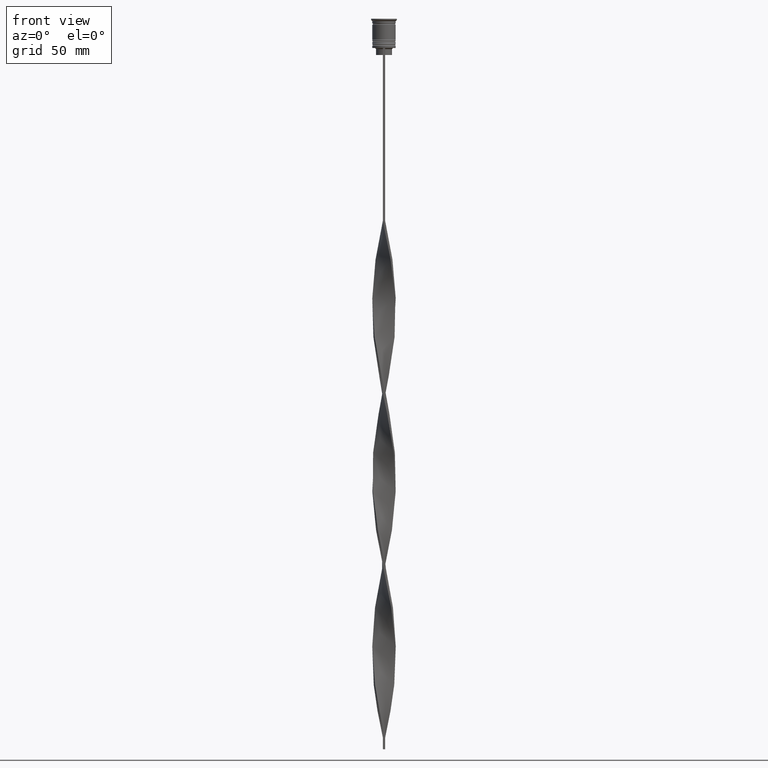
[diagram: clean part render]
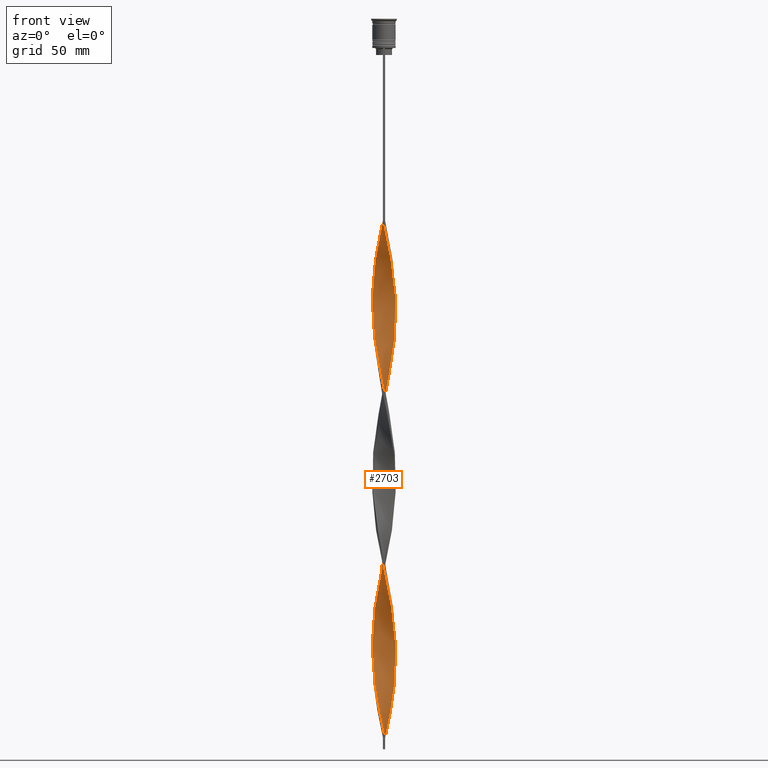
[diagram: same view with one face highlighted and labeled with its STEP entity id]
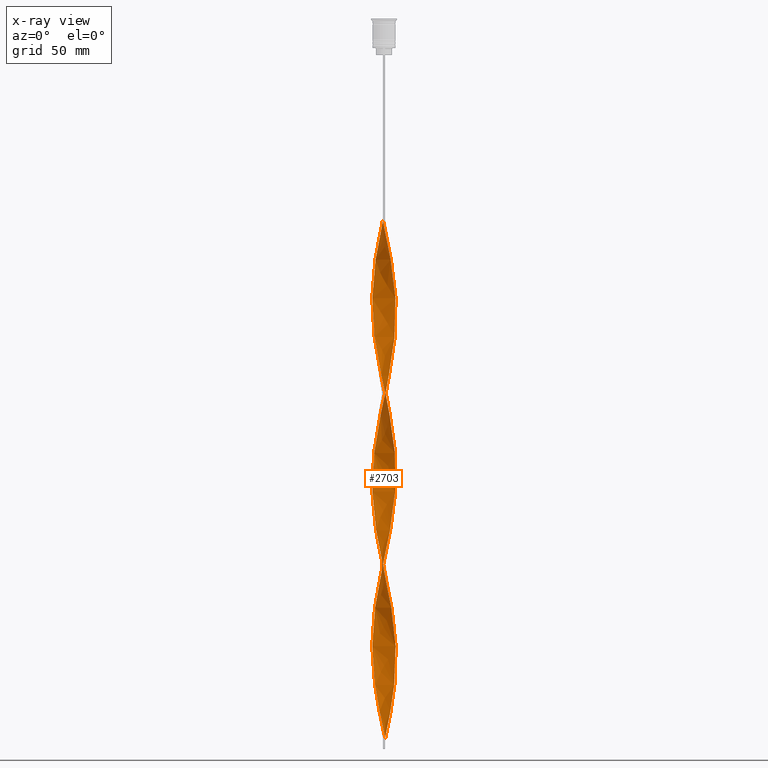
[diagram: x-ray of the same camera — body ghosted, the highlighted face saturated]
A machine part, front view. The second image highlights one B-rep face of the part: STEP entity #2703.
The next image is the same camera in x-ray: the body ghosted, the highlighted face saturated — about 0% of this face is hidden behind the body in this view.
In plain terms, the highlighted face is a freeform B-spline surface patch.
Its self-contained STEP definition (entity closure, byte-faithful):
#8 = CARTESIAN_POINT ( 'NONE',  ( 4.017260339178529094, 3.018545902792137969, -288.1140350877192873 ) ) ;
#12 = CARTESIAN_POINT ( 'NONE',  ( 2.324095515968828352, -4.474589461973507376, -100.0701754385964932 ) ) ;
#20 = CARTESIAN_POINT ( 'NONE',  ( -5.024212137769516140, -0.08539551914167284319, -268.7280701754385746 ) ) ;
#28 = CARTESIAN_POINT ( 'NONE',  ( 5.024212137769514364, -0.08539551914167359259, -272.6052631578947398 ) ) ;
#53 = CARTESIAN_POINT ( 'NONE',  ( 3.028891101531455021, -4.031028344680095188, -251.2807017543860013 ) ) ;
#56 = CARTESIAN_POINT ( 'NONE',  ( 1.717995393956228911, 4.740449624971872389, -154.3508771929824661 ) ) ;
#74 = CARTESIAN_POINT ( 'NONE',  ( 3.651066433574118975, -3.477511282250445923, -255.1578947368421666 ) ) ;
#77 = CARTESIAN_POINT ( 'NONE',  ( 4.173650190928738901, -2.829136777236350042, -111.7017543859649038 ) ) ;
#94 = CARTESIAN_POINT ( 'NONE',  ( 3.767136494507088873, -3.351425585076243330, -177.6140350877192873 ) ) ;
#98 = CARTESIAN_POINT ( 'NONE',  ( 3.651066433574118975, -3.477511282250445923, -107.8245614035087527 ) ) ;
#119 = CARTESIAN_POINT ( 'NONE',  ( 3.164131141785981871, -3.925766796198029152, -173.7368421052631220 ) ) ;
#125 = EDGE_CURVE ( 'NONE', #1492, #1554, #1622, .T. ) ;
#139 = CARTESIAN_POINT ( 'NONE',  ( -5.017136063310728034, -0.5017136063310723149, -123.3333333333333286 ) ) ;
#151 = CARTESIAN_POINT ( 'NONE',  ( 0.7452727871507823787, -4.986776443082572285, -239.6491228070175339 ) ) ;
#168 = CARTESIAN_POINT ( 'NONE',  ( -4.969744073267051476, -0.7427273027343286316, -202.8157894736842195 ) ) ;
#169 = CARTESIAN_POINT ( 'NONE',  ( -4.173650190928740678, -2.829136777236350486, -134.9649122807017534 ) ) ;
#173 = CARTESIAN_POINT ( 'NONE',  ( -0.5000000000000000000, -4.999999999999999112, -86.50000000000000000 ) ) ;
#194 = CARTESIAN_POINT ( 'NONE',  ( -3.767136494507089761, -3.351425585076238001, -216.3859649122807127 ) ) ;
#195 = CARTESIAN_POINT ( 'NONE',  ( -1.940000089582124554, -4.635342452550982983, -148.5350877192982466 ) ) ;
#204 = EDGE_LOOP ( 'NONE', ( #2433, #3784, #794, #3159 ) ) ;
#211 = CARTESIAN_POINT ( 'NONE',  ( -4.378018920948800741, 2.466363786592377760, -187.3070175438596436 ) ) ;
#212 = CARTESIAN_POINT ( 'NONE',  ( 0.08568818774616430989, -5.041431181225384250, -158.2280701754386030 ) ) ;
#216 = CARTESIAN_POINT ( 'NONE',  ( 2.676493308750143907, 4.252808903326801726, -218.3245614035087954 ) ) ;
#224 = CARTESIAN_POINT ( 'NONE',  ( 3.164131141785981871, 3.925766796198026487, -146.5964912280701355 ) ) ;
#229 = CARTESIAN_POINT ( 'NONE',  ( -0.9143118122538361758, -4.958568818774615750, -231.8947368421052602 ) ) ;
#231 = CARTESIAN_POINT ( 'NONE',  ( -3.651066433574120751, -3.477511282250446811, -138.8421052631578902 ) ) ;
#236 = CARTESIAN_POINT ( 'NONE',  ( 4.267384183849968871, -2.685666220508039714, -181.4912280701754241 ) ) ;
#245 = CARTESIAN_POINT ( 'NONE',  ( 2.819473840788612851, 4.159395059513907533, -148.5350877192982466 ) ) ;
#254 = CARTESIAN_POINT ( 'NONE',  ( -3.028891101531455909, -4.031028344680096076, -290.0526315789473415 ) ) ;
#257 = CARTESIAN_POINT ( 'NONE',  ( -4.941632792297183663, -0.9111889738649963100, -272.6052631578947398 ) ) ;
#263 = CARTESIAN_POINT ( 'NONE',  ( 0.08568818774616784872, 5.041431181225382474, -162.1052631578947683 ) ) ;
#271 = CARTESIAN_POINT ( 'NONE',  ( -4.017260339178529094, 3.018545902792140634, -253.2192982456140555 ) ) ;
#276 = CARTESIAN_POINT ( 'NONE',  ( 0.5000000000000006661, 4.999999999999999112, -307.5000000000000000 ) ) ;
#282 = CARTESIAN_POINT ( 'NONE',  ( 4.651228756897745065, 1.946648882453701823, -134.9649122807017534 ) ) ;
#288 = CARTESIAN_POINT ( 'NONE',  ( -0.5000000000000000000, 5.000000000000000888, -233.8333333333333428 ) ) ;
#293 = CARTESIAN_POINT ( 'NONE',  ( -3.465633818146536704, 3.638596190637135130, -249.3421052631578902 ) ) ;
#304 = CARTESIAN_POINT ( 'NONE',  ( -4.724258586126252268, 1.712127568673660560, -191.1842105263157805 ) ) ;
#311 = CARTESIAN_POINT ( 'NONE',  ( 4.173650190928741566, 2.829136777236348266, -208.6315789473684106 ) ) ;
#324 = CARTESIAN_POINT ( 'NONE',  ( 4.724258586126251380, -1.712127568673661226, -264.8508771929824661 ) ) ;
#332 = CARTESIAN_POINT ( 'NONE',  ( 4.582387650968867021, 2.103590795948400594, -204.7543859649123021 ) ) ;
#342 = CARTESIAN_POINT ( 'NONE',  ( 4.779714345601772330, 1.550590459937317256, -280.3596491228070136 ) ) ;
#346 = CARTESIAN_POINT ( 'NONE',  ( -0.5000000000000000000, -4.999999999999999112, -86.50000000000000000 ) ) ;
#351 = CARTESIAN_POINT ( 'NONE',  ( -0.3297922997023091662, -5.014103812153980044, -303.6228070175438347 ) ) ;
#363 = CARTESIAN_POINT ( 'NONE',  ( 4.459306470373856079, 2.316157551480868548, -284.2368421052631220 ) ) ;
#368 = CARTESIAN_POINT ( 'NONE',  ( 2.096405966873735149, 4.566736473900831150, -152.4122807017543835 ) ) ;
#388 = CARTESIAN_POINT ( 'NONE',  ( 4.941632792297182775, -0.9111889738649967541, -268.7280701754385746 ) ) ;
#410 = CARTESIAN_POINT ( 'NONE',  ( -4.459306470373856968, 2.316157551480870769, -109.7631578947368354 ) ) ;
#430 = CARTESIAN_POINT ( 'NONE',  ( 3.465633818146536704, -3.638596190637135130, -175.6754385964912046 ) ) ;
#452 = EDGE_CURVE ( 'NONE', #1178, #1492, #3653, .T. ) ;
#456 = CARTESIAN_POINT ( 'NONE',  ( -4.173650190928740678, -2.829136777236350486, -134.9649122807017534 ) ) ;
#466 = CARTESIAN_POINT ( 'NONE',  ( -0.08568818774616615563, -5.041431181225382474, -235.7719298245613970 ) ) ;
#467 = CARTESIAN_POINT ( 'NONE',  ( -4.866129521283641068, -1.320664341398920527, -127.2105263157894370 ) ) ;
#485 = CARTESIAN_POINT ( 'NONE',  ( 5.024212137769514364, -0.08539551914167359259, -272.6052631578947398 ) ) ;
#486 = CARTESIAN_POINT ( 'NONE',  ( -4.779714345601773218, 1.550590459937319476, -113.6403508771929864 ) ) ;
#504 = CARTESIAN_POINT ( 'NONE',  ( 4.941632792297182775, -0.9111889738649967541, -268.7280701754385746 ) ) ;
#505 = CARTESIAN_POINT ( 'NONE',  ( -3.767136494507089317, 3.351425585076241553, -103.9473684210526159 ) ) ;
#525 = CARTESIAN_POINT ( 'NONE',  ( -4.651228756897745065, -1.946648882453699159, -208.6315789473684106 ) ) ;
#526 = CARTESIAN_POINT ( 'NONE',  ( -3.164131141785982759, 3.925766796198028263, -100.0701754385964932 ) ) ;
#530 = CARTESIAN_POINT ( 'NONE',  ( 1.555904663195420978, 4.796095443128456814, -224.1403508771929580 ) ) ;
#539 = CARTESIAN_POINT ( 'NONE',  ( -4.908199934305798706, -1.154532037420933799, -204.7543859649123306 ) ) ;
#543 = CARTESIAN_POINT ( 'NONE',  ( 0.3297922997023081670, -5.014103812153978268, -237.7105263157894797 ) ) ;
#548 = CARTESIAN_POINT ( 'NONE',  ( 1.940000089582126774, 4.635342452550982095, -222.2017543859649038 ) ) ;
#555 = CARTESIAN_POINT ( 'NONE',  ( 1.940000089582122778, -4.635342452550982095, -98.13157894736841058 ) ) ;
#562 = CARTESIAN_POINT ( 'NONE',  ( -3.912358312251430714, -3.153324029743398427, -284.2368421052631220 ) ) ;
#580 = CARTESIAN_POINT ( 'NONE',  ( 3.767136494507087541, 3.351425585076240665, -142.7192982456140271 ) ) ;
#588 = CARTESIAN_POINT ( 'NONE',  ( 4.969744073267052364, -0.7427273027343305190, -191.1842105263157805 ) ) ;
#591 = CARTESIAN_POINT ( 'NONE',  ( -4.378018920948803405, -2.466363786592375540, -280.3596491228070136 ) ) ;
#597 = CARTESIAN_POINT ( 'NONE',  ( 1.555904663195416537, -4.796095443128455926, -96.19298245614034215 ) ) ;
#606 = CARTESIAN_POINT ( 'NONE',  ( -4.941632792297183663, -0.9111889738649963100, -272.6052631578947398 ) ) ;
#610 = CARTESIAN_POINT ( 'NONE',  ( 0.08568818774616432377, -5.041431181225384250, -305.5614035087719458 ) ) ;
#618 = CARTESIAN_POINT ( 'NONE',  ( -4.173650190928737125, 2.829136777236351818, -185.3684210526315894 ) ) ;
#624 = CARTESIAN_POINT ( 'NONE',  ( -3.465633818146536704, 3.638596190637135130, -249.3421052631578902 ) ) ;
#629 = CARTESIAN_POINT ( 'NONE',  ( -4.017260339178529094, 3.018545902792140634, -253.2192982456140555 ) ) ;
#640 = CARTESIAN_POINT ( 'NONE',  ( -2.819473840788614627, -4.159395059513905757, -222.2017543859649038 ) ) ;
#649 = CARTESIAN_POINT ( 'NONE',  ( 3.339978767552791439, 3.754269813465269223, -214.4473684210526301 ) ) ;
#654 = CARTESIAN_POINT ( 'NONE',  ( -4.724258586126254045, -1.712127568673661004, -276.4824561403509051 ) ) ;
#664 = CARTESIAN_POINT ( 'NONE',  ( -0.9143118122538339554, 4.958568818774617526, -88.43859649122805422 ) ) ;
#683 = CARTESIAN_POINT ( 'NONE',  ( -2.819473840788612851, 4.159395059513909310, -98.13157894736841058 ) ) ;
#686 = CARTESIAN_POINT ( 'NONE',  ( 4.941632792297182775, -0.9111889738649967541, -121.3947368421052460 ) ) ;
#702 = CARTESIAN_POINT ( 'NONE',  ( 3.339978767552786554, -3.754269813465270555, -253.2192982456140555 ) ) ;
#707 = CARTESIAN_POINT ( 'NONE',  ( 4.866129521283638404, -1.320664341398920749, -119.4561403508771917 ) ) ;
#728 = CARTESIAN_POINT ( 'NONE',  ( -0.5000000000000000000, 5.000000000000000888, -86.50000000000000000 ) ) ;
#731 = CARTESIAN_POINT ( 'NONE',  ( 1.150588725173099736, -4.891435943105514106, -94.25438596491227372 ) ) ;
#738 = CARTESIAN_POINT ( 'NONE',  ( 0.08568818774616430989, -5.041431181225384250, -305.5614035087719458 ) ) ;
#749 = CARTESIAN_POINT ( 'NONE',  ( -2.676493308750143463, -4.252808903326802614, -144.6578947368421098 ) ) ;
#768 = CARTESIAN_POINT ( 'NONE',  ( 3.028891101531458130, 4.031028344680094300, -216.3859649122807127 ) ) ;
#781 = CARTESIAN_POINT ( 'NONE',  ( -3.465633818146536704, -3.638596190637132466, -218.3245614035087954 ) ) ;
#782 = CARTESIAN_POINT ( 'NONE',  ( 2.819473840788612407, -4.159395059513909310, -171.7982456140350962 ) ) ;
#794 = ORIENTED_EDGE ( 'NONE', *, *, #125, .F. ) ;
#804 = CARTESIAN_POINT ( 'NONE',  ( 4.173650190928738901, -2.829136777236350042, -259.0350877192983035 ) ) ;
#816 = FACE_OUTER_BOUND ( 'NONE', #204, .T. ) ;
#820 = CARTESIAN_POINT ( 'NONE',  ( 5.017136063310725369, -0.5017136063310729810, -270.6666666666666288 ) ) ;
#840 = CARTESIAN_POINT ( 'NONE',  ( -3.164131141785982315, -3.925766796198026487, -220.2631578947368212 ) ) ;
#841 = CARTESIAN_POINT ( 'NONE',  ( -4.969744073267053253, 0.7427273027343311851, -117.5175438596491233 ) ) ;
#848 = CARTESIAN_POINT ( 'NONE',  ( -1.717995393956227135, 4.740449624971875053, -239.6491228070175055 ) ) ;
#859 = CARTESIAN_POINT ( 'NONE',  ( 4.173650190928738901, -2.829136777236350042, -111.7017543859649038 ) ) ;
#863 = CARTESIAN_POINT ( 'NONE',  ( 0.08568818774616783485, 5.041431181225382474, -162.1052631578947398 ) ) ;
#864 = CARTESIAN_POINT ( 'NONE',  ( -1.316153603105030712, 4.849509221873245401, -90.37719298245613686 ) ) ;
#869 = CARTESIAN_POINT ( 'NONE',  ( 0.08568818774616432377, -5.041431181225384250, -158.2280701754386314 ) ) ;
#875 = CARTESIAN_POINT ( 'NONE',  ( -1.555904663195415649, 4.796095443128455926, -169.8596491228070136 ) ) ;
#880 = CARTESIAN_POINT ( 'NONE',  ( 0.9143118122538356207, 4.958568818774615750, -305.5614035087719458 ) ) ;
#881 = CARTESIAN_POINT ( 'NONE',  ( 4.459306470373856968, -2.316157551480870769, -183.4298245614035068 ) ) ;
#885 = CARTESIAN_POINT ( 'NONE',  ( -1.150588725173101068, -4.891435943105515882, -152.4122807017543835 ) ) ;
#892 = CARTESIAN_POINT ( 'NONE',  ( 4.908199934305798706, 1.154532037420934687, -131.0877192982456449 ) ) ;
#897 = CARTESIAN_POINT ( 'NONE',  ( 1.717995393956228911, 4.740449624971872389, -301.6842105263157805 ) ) ;
#898 = CARTESIAN_POINT ( 'NONE',  ( 0.3297922997023119973, 5.014103812153979156, -229.9561403508772059 ) ) ;
#902 = CARTESIAN_POINT ( 'NONE',  ( -3.651066433574120751, -3.477511282250446811, -286.1754385964911762 ) ) ;
#916 = CARTESIAN_POINT ( 'NONE',  ( -1.940000089582122333, 4.635342452550982095, -171.7982456140350962 ) ) ;
#924 = CARTESIAN_POINT ( 'NONE',  ( 4.267384183849967094, 2.685666220508037494, -286.1754385964911762 ) ) ;
#925 = CARTESIAN_POINT ( 'NONE',  ( -0.08568818774616365763, 5.041431181225384250, -231.8947368421052602 ) ) ;
#928 = CARTESIAN_POINT ( 'NONE',  ( -3.339978767552788774, -3.754269813465271000, -288.1140350877192873 ) ) ;
#935 = CARTESIAN_POINT ( 'NONE',  ( -2.324095515968827463, 4.474589461973509152, -173.7368421052631220 ) ) ;
#942 = CARTESIAN_POINT ( 'NONE',  ( -2.819473840788612851, 4.159395059513909310, -245.4649122807017534 ) ) ;
#952 = CARTESIAN_POINT ( 'NONE',  ( 4.582387650968865245, -2.103590795948401038, -262.9122807017543551 ) ) ;
#959 = CARTESIAN_POINT ( 'NONE',  ( 4.017260339178527317, -3.018545902792142410, -179.5526315789473415 ) ) ;
#963 = CARTESIAN_POINT ( 'NONE',  ( -4.866129521283641068, -1.320664341398920527, -274.5438596491227941 ) ) ;
#976 = CARTESIAN_POINT ( 'NONE',  ( 3.465633818146536260, 3.638596190637132466, -291.9912280701753957 ) ) ;
#979 = CARTESIAN_POINT ( 'NONE',  ( -0.08568818774616615563, -5.041431181225382474, -88.43859649122805422 ) ) ;
#998 = CARTESIAN_POINT ( 'NONE',  ( -2.474816539791242054, 4.393023322829790800, -96.19298245614034215 ) ) ;
#1018 = CARTESIAN_POINT ( 'NONE',  ( -4.651228756897745953, 1.946648882453703155, -111.7017543859649038 ) ) ;
#1021 = CARTESIAN_POINT ( 'NONE',  ( 0.5000000000000006661, 4.999999999999999112, -160.1666666666666856 ) ) ;
#1037 = CARTESIAN_POINT ( 'NONE',  ( -3.164131141785982315, -3.925766796198026487, -220.2631578947368212 ) ) ;
#1058 = CARTESIAN_POINT ( 'NONE',  ( 5.031288212228304246, -0.3309225680477295151, -193.1228070175438063 ) ) ;
#1061 = CARTESIAN_POINT ( 'NONE',  ( 4.724258586126251380, -1.712127568673661226, -117.5175438596491233 ) ) ;
#1065 = CARTESIAN_POINT ( 'NONE',  ( 0.3297922997023081670, -5.014103812153978268, -90.37719298245613686 ) ) ;
#1076 = CARTESIAN_POINT ( 'NONE',  ( -4.724258586126254045, -1.712127568673661004, -129.1491228070175339 ) ) ;
#1088 = CARTESIAN_POINT ( 'NONE',  ( 3.028891101531455021, -4.031028344680095188, -251.2807017543860013 ) ) ;
#1112 = CARTESIAN_POINT ( 'NONE',  ( -3.339978767552784777, 3.754269813465272332, -179.5526315789473415 ) ) ;
#1113 = CARTESIAN_POINT ( 'NONE',  ( -2.819473840788612851, 4.159395059513909310, -98.13157894736841058 ) ) ;
#1132 = CARTESIAN_POINT ( 'NONE',  ( -0.7452727871507809354, 4.986776443082573174, -165.9824561403508199 ) ) ;
#1151 = CARTESIAN_POINT ( 'NONE',  ( 4.651228756897744177, 1.946648882453701823, -282.2982456140351246 ) ) ;
#1156 = CARTESIAN_POINT ( 'NONE',  ( -0.08568818774616367151, 5.041431181225384250, -231.8947368421052886 ) ) ;
#1165 = CARTESIAN_POINT ( 'NONE',  ( 5.024212137769514364, -0.08539551914167359259, -125.2719298245613970 ) ) ;
#1173 = CARTESIAN_POINT ( 'NONE',  ( -1.555904663195415871, 4.796095443128455038, -169.8596491228070136 ) ) ;
#1174 = CARTESIAN_POINT ( 'NONE',  ( 0.4999999999999993339, -5.000000000000000888, -160.1666666666666856 ) ) ;
#1178 = VERTEX_POINT ( 'NONE', #173 ) ;
#1179 = CARTESIAN_POINT ( 'NONE',  ( 4.378018920948803405, 2.466363786592376872, -206.6929824561403564 ) ) ;
#1188 = CARTESIAN_POINT ( 'NONE',  ( -4.267384183849968871, -2.685666220508036606, -212.5087719298245759 ) ) ;
#1195 = CARTESIAN_POINT ( 'NONE',  ( -2.324095515968829240, -4.474589461973509152, -293.9298245614035068 ) ) ;
#1197 = CARTESIAN_POINT ( 'NONE',  ( -5.031288212228304246, 0.3309225680477266840, -119.4561403508771917 ) ) ;
#1203 = CARTESIAN_POINT ( 'NONE',  ( -4.378018920948800741, 2.466363786592377760, -187.3070175438596436 ) ) ;
#1210 = CARTESIAN_POINT ( 'NONE',  ( -2.096405966873734705, 4.566736473900832927, -241.5877192982455881 ) ) ;
#1223 = CARTESIAN_POINT ( 'NONE',  ( 4.378018920948801629, -2.466363786592375984, -113.6403508771929864 ) ) ;
#1229 = CARTESIAN_POINT ( 'NONE',  ( -3.164131141785982759, 3.925766796198028263, -247.4035087719297792 ) ) ;
#1235 = CARTESIAN_POINT ( 'NONE',  ( 0.4999999999999997780, -1.666666666666667851, -307.5000000000000000 ) ) ;
#1245 = CARTESIAN_POINT ( 'NONE',  ( 0.9143118122538355097, 4.958568818774616638, -158.2280701754386314 ) ) ;
#1253 = CARTESIAN_POINT ( 'NONE',  ( 5.017136063310726257, 0.5017136063310717597, -197.0000000000000000 ) ) ;
#1255 = LINE ( 'NONE', #2492, #1972 ) ;
#1256 = CARTESIAN_POINT ( 'NONE',  ( -4.173650190928740678, -2.829136777236350486, -282.2982456140351246 ) ) ;
#1263 = CARTESIAN_POINT ( 'NONE',  ( -4.908199934305800483, 1.154532037420935797, -115.5789473684210265 ) ) ;
#1270 = CARTESIAN_POINT ( 'NONE',  ( -5.024212137769516140, -0.08539551914167284319, -268.7280701754385746 ) ) ;
#1275 = CARTESIAN_POINT ( 'NONE',  ( -4.582387650968867021, -2.103590795948401038, -278.4210526315789593 ) ) ;
#1282 = CARTESIAN_POINT ( 'NONE',  ( 3.767136494507087541, 3.351425585076240665, -290.0526315789473415 ) ) ;
#1304 = CARTESIAN_POINT ( 'NONE',  ( 2.474816539791243830, 4.393023322829788135, -297.8070175438595584 ) ) ;
#1327 = CARTESIAN_POINT ( 'NONE',  ( 2.819473840788612851, 4.159395059513907533, -295.8684210526315610 ) ) ;
#1330 = CARTESIAN_POINT ( 'NONE',  ( 1.316153603105031156, 4.849509221873243625, -156.2894736842105203 ) ) ;
#1348 = CARTESIAN_POINT ( 'NONE',  ( 4.267384183849967982, 2.685666220508037494, -286.1754385964911762 ) ) ;
#1351 = CARTESIAN_POINT ( 'NONE',  ( 5.024212137769514364, -0.08539551914167359259, -125.2719298245613970 ) ) ;
#1370 = CARTESIAN_POINT ( 'NONE',  ( 4.582387650968867021, 2.103590795948400594, -204.7543859649123306 ) ) ;
#1393 = CARTESIAN_POINT ( 'NONE',  ( -3.912358312251430714, -3.153324029743398427, -136.9035087719298076 ) ) ;
#1413 = CARTESIAN_POINT ( 'NONE',  ( -4.378018920948803405, -2.466363786592375540, -133.0263157894736992 ) ) ;
#1424 = CARTESIAN_POINT ( 'NONE',  ( -4.779714345601771441, -1.550590459937318588, -206.6929824561403564 ) ) ;
#1446 = CARTESIAN_POINT ( 'NONE',  ( -1.150588725173099514, 4.891435943105514106, -167.9210526315789309 ) ) ;
#1447 = CARTESIAN_POINT ( 'NONE',  ( -3.912358312251430714, -3.153324029743398427, -136.9035087719298076 ) ) ;
#1467 = CARTESIAN_POINT ( 'NONE',  ( 3.339978767552786554, -3.754269813465270555, -253.2192982456140555 ) ) ;
#1468 = CARTESIAN_POINT ( 'NONE',  ( -1.555904663195419868, -4.796095443128455926, -150.4736842105263008 ) ) ;
#1471 = EDGE_CURVE ( 'NONE', #1178, #3686, #1255, .T. ) ;
#1481 = CARTESIAN_POINT ( 'NONE',  ( -0.5000000000000000000, -4.999999999999999112, -86.50000000000000000 ) ) ;
#1485 = CARTESIAN_POINT ( 'NONE',  ( 4.724258586126251380, -1.712127568673661226, -264.8508771929824661 ) ) ;
#1486 = CARTESIAN_POINT ( 'NONE',  ( -0.9143118122538339554, 4.958568818774617526, -88.43859649122805422 ) ) ;
#1490 = CARTESIAN_POINT ( 'NONE',  ( -5.024212137769516140, -0.08539551914167284319, -121.3947368421052460 ) ) ;
#1492 = VERTEX_POINT ( 'NONE', #3450 ) ;
#1498 = CARTESIAN_POINT ( 'NONE',  ( 2.324095515968828796, -4.474589461973508264, -100.0701754385964932 ) ) ;
#1505 = CARTESIAN_POINT ( 'NONE',  ( -3.028891101531455909, -4.031028344680096076, -142.7192982456140271 ) ) ;
#1509 = CARTESIAN_POINT ( 'NONE',  ( 1.717995393956226025, -4.740449624971875942, -165.9824561403508199 ) ) ;
#1519 = CARTESIAN_POINT ( 'NONE',  ( -2.676493308750141686, 4.252808903326801726, -175.6754385964912046 ) ) ;
#1525 = CARTESIAN_POINT ( 'NONE',  ( 3.164131141785981871, 3.925766796198026487, -293.9298245614035068 ) ) ;
#1526 = CARTESIAN_POINT ( 'NONE',  ( 2.676493308750143907, 4.252808903326801726, -218.3245614035087954 ) ) ;
#1530 = CARTESIAN_POINT ( 'NONE',  ( -3.767136494507089317, 3.351425585076241997, -251.2807017543860013 ) ) ;
#1537 = CARTESIAN_POINT ( 'NONE',  ( -4.779714345601771441, -1.550590459937318588, -206.6929824561403564 ) ) ;
#1543 = CARTESIAN_POINT ( 'NONE',  ( 4.779714345601772330, -1.550590459937321031, -187.3070175438596436 ) ) ;
#1548 = CARTESIAN_POINT ( 'NONE',  ( -1.555904663195420090, -4.796095443128456814, -297.8070175438595584 ) ) ;
#1554 = VERTEX_POINT ( 'NONE', #3217 ) ;
#1555 = CARTESIAN_POINT ( 'NONE',  ( 2.676493308750141686, -4.252808903326800838, -102.0087719298245474 ) ) ;
#1561 = CARTESIAN_POINT ( 'NONE',  ( -4.724258586126254045, -1.712127568673661004, -276.4824561403509051 ) ) ;
#1567 = CARTESIAN_POINT ( 'NONE',  ( -5.017136063310728034, -0.5017136063310723149, -270.6666666666665719 ) ) ;
#1579 = CARTESIAN_POINT ( 'NONE',  ( -4.941632792297182775, 0.9111889738649984194, -195.0614035087719458 ) ) ;
#1588 = CARTESIAN_POINT ( 'NONE',  ( -4.779714345601773218, 1.550590459937319476, -260.9736842105263577 ) ) ;
#1598 = CARTESIAN_POINT ( 'NONE',  ( 4.651228756897745065, 1.946648882453701823, -282.2982456140351246 ) ) ;
#1606 = CARTESIAN_POINT ( 'NONE',  ( -5.017136063310726257, -0.5017136063310723149, -270.6666666666666288 ) ) ;
#1616 = CARTESIAN_POINT ( 'NONE',  ( -1.717995393956227135, 4.740449624971875053, -92.31578947368419108 ) ) ;
#1620 = CARTESIAN_POINT ( 'NONE',  ( 0.3297922997023081670, -5.014103812153978268, -90.37719298245613686 ) ) ;
#1622 = B_SPLINE_CURVE_WITH_KNOTS ( 'NONE', 3,
 ( #276, #4093, #1235, #3470 ),
 .UNSPECIFIED., .F., .F.,
 ( 4, 4 ),
 ( 0.000000000000000000, 1.000000000000000000 ),
 .UNSPECIFIED. ) ;
#1640 = CARTESIAN_POINT ( 'NONE',  ( -1.717995393956227135, -4.740449624971873277, -228.0175438596490949 ) ) ;
#1666 = CARTESIAN_POINT ( 'NONE',  ( 5.017136063310725369, -0.5017136063310729810, -270.6666666666665719 ) ) ;
#1669 = CARTESIAN_POINT ( 'NONE',  ( 2.676493308750141686, -4.252808903326800838, -102.0087719298245474 ) ) ;
#1686 = CARTESIAN_POINT ( 'NONE',  ( 1.316153603105030268, -4.849509221873245401, -164.0438596491227941 ) ) ;
#1694 = CARTESIAN_POINT ( 'NONE',  ( 0.4999999999999993339, -5.000000000000000888, -307.5000000000000000 ) ) ;
#1707 = CARTESIAN_POINT ( 'NONE',  ( 0.3297922997023119973, 5.014103812153979156, -229.9561403508772059 ) ) ;
#1730 = CARTESIAN_POINT ( 'NONE',  ( -3.651066433574120751, -3.477511282250446811, -138.8421052631578902 ) ) ;
#1741 = CARTESIAN_POINT ( 'NONE',  ( -4.017260339178530870, -3.018545902792136193, -214.4473684210526301 ) ) ;
#1742 = CARTESIAN_POINT ( 'NONE',  ( -0.3297922997023091662, -5.014103812153980044, -156.2894736842105203 ) ) ;
#1759 = CARTESIAN_POINT ( 'NONE',  ( -1.316153603105033820, -4.849509221873242737, -229.9561403508772059 ) ) ;
#1760 = CARTESIAN_POINT ( 'NONE',  ( -4.908199934305800483, 1.154532037420935797, -115.5789473684210265 ) ) ;
#1779 = CARTESIAN_POINT ( 'NONE',  ( 2.676493308750141686, -4.252808903326800838, -249.3421052631578902 ) ) ;
#1780 = CARTESIAN_POINT ( 'NONE',  ( -5.031288212228304246, 0.3309225680477266840, -119.4561403508771917 ) ) ;
#1800 = CARTESIAN_POINT ( 'NONE',  ( 1.150588725173099736, -4.891435943105514106, -241.5877192982455881 ) ) ;
#1801 = CARTESIAN_POINT ( 'NONE',  ( -4.267384183849968871, 2.685666220508038382, -107.8245614035087527 ) ) ;
#1806 = CARTESIAN_POINT ( 'NONE',  ( -0.5000000000000000000, 5.000000000000000888, -233.8333333333333428 ) ) ;
#1813 = CARTESIAN_POINT ( 'NONE',  ( 4.941632792297182775, -0.9111889738649967541, -121.3947368421052460 ) ) ;
#1818 = CARTESIAN_POINT ( 'NONE',  ( 1.940000089582122778, -4.635342452550982095, -245.4649122807017534 ) ) ;
#1819 = CARTESIAN_POINT ( 'NONE',  ( -2.096405966873734705, 4.566736473900832927, -94.25438596491227372 ) ) ;
#1823 = CARTESIAN_POINT ( 'NONE',  ( 5.017136063310728034, 0.5017136063310717597, -197.0000000000000000 ) ) ;
#1830 = CARTESIAN_POINT ( 'NONE',  ( -5.024212137769514364, 0.08539551914167310687, -198.9385964912280826 ) ) ;
#1839 = CARTESIAN_POINT ( 'NONE',  ( -1.555904663195419868, -4.796095443128455926, -297.8070175438595584 ) ) ;
#1844 = CARTESIAN_POINT ( 'NONE',  ( -4.969744073267053253, 0.7427273027343311851, -264.8508771929824661 ) ) ;
#1855 = CARTESIAN_POINT ( 'NONE',  ( -4.866129521283638404, 1.320664341398923192, -193.1228070175438063 ) ) ;
#1863 = CARTESIAN_POINT ( 'NONE',  ( 5.031288212228304246, -0.3309225680477295151, -193.1228070175438347 ) ) ;
#1873 = CARTESIAN_POINT ( 'NONE',  ( 4.582387650968865245, -2.103590795948401038, -115.5789473684210265 ) ) ;
#1879 = CARTESIAN_POINT ( 'NONE',  ( 3.465633818146536260, 3.638596190637132466, -291.9912280701753957 ) ) ;
#1880 = CARTESIAN_POINT ( 'NONE',  ( 1.150588725173101512, 4.891435943105515882, -226.0789473684210407 ) ) ;
#1890 = CARTESIAN_POINT ( 'NONE',  ( -4.582387650968865245, 2.103590795948401482, -189.2456140350877263 ) ) ;
#1897 = CARTESIAN_POINT ( 'NONE',  ( -3.767136494507089317, 3.351425585076241553, -251.2807017543860013 ) ) ;
#1902 = CARTESIAN_POINT ( 'NONE',  ( -3.028891101531455909, -4.031028344680096076, -290.0526315789473415 ) ) ;
#1914 = CARTESIAN_POINT ( 'NONE',  ( 4.908199934305798706, 1.154532037420934687, -278.4210526315789593 ) ) ;
#1918 = CARTESIAN_POINT ( 'NONE',  ( 4.779714345601772330, 1.550590459937317256, -133.0263157894736992 ) ) ;
#1923 = CARTESIAN_POINT ( 'NONE',  ( 1.316153603105031156, 4.849509221873243625, -303.6228070175438347 ) ) ;
#1924 = CARTESIAN_POINT ( 'NONE',  ( 3.651066433574120751, 3.477511282250446367, -212.5087719298246043 ) ) ;
#1927 = CARTESIAN_POINT ( 'NONE',  ( -2.324095515968829684, -4.474589461973509152, -293.9298245614035068 ) ) ;
#1935 = CARTESIAN_POINT ( 'NONE',  ( -3.465633818146536704, -3.638596190637132466, -218.3245614035087954 ) ) ;
#1938 = CARTESIAN_POINT ( 'NONE',  ( 3.465633818146536260, 3.638596190637132466, -144.6578947368421098 ) ) ;
#1953 = CARTESIAN_POINT ( 'NONE',  ( -2.474816539791244274, -4.393023322829788135, -224.1403508771929580 ) ) ;
#1957 = CARTESIAN_POINT ( 'NONE',  ( 4.459306470373856079, 2.316157551480868548, -136.9035087719298076 ) ) ;
#1972 = VECTOR ( 'NONE', #2537, 1000.000000000000000 ) ;
#1976 = CARTESIAN_POINT ( 'NONE',  ( 4.378018920948801629, -2.466363786592375984, -260.9736842105263577 ) ) ;
#1998 = CARTESIAN_POINT ( 'NONE',  ( -1.316153603105030712, 4.849509221873245401, -90.37719298245613686 ) ) ;
#2001 = CARTESIAN_POINT ( 'NONE',  ( 0.7452727871507823787, -4.986776443082572285, -92.31578947368420529 ) ) ;
#2019 = CARTESIAN_POINT ( 'NONE',  ( 2.096405966873734705, -4.566736473900832927, -167.9210526315789309 ) ) ;
#2040 = CARTESIAN_POINT ( 'NONE',  ( 4.651228756897745065, -1.946648882453705598, -185.3684210526315894 ) ) ;
#2055 = CARTESIAN_POINT ( 'NONE',  ( -3.651066433574118086, 3.477511282250446367, -181.4912280701754241 ) ) ;
#2056 = CARTESIAN_POINT ( 'NONE',  ( 3.164131141785981871, -3.925766796198029152, -173.7368421052631220 ) ) ;
#2074 = CARTESIAN_POINT ( 'NONE',  ( -2.676493308750141686, 4.252808903326801726, -175.6754385964912046 ) ) ;
#2075 = CARTESIAN_POINT ( 'NONE',  ( -4.459306470373856968, 2.316157551480870769, -109.7631578947368354 ) ) ;
#2093 = CARTESIAN_POINT ( 'NONE',  ( 4.908199934305798706, 1.154532037420934687, -278.4210526315789593 ) ) ;
#2115 = CARTESIAN_POINT ( 'NONE',  ( 4.459306470373856079, 2.316157551480868548, -284.2368421052631220 ) ) ;
#2116 = CARTESIAN_POINT ( 'NONE',  ( -2.324095515968829240, -4.474589461973509152, -146.5964912280701355 ) ) ;
#2120 = CARTESIAN_POINT ( 'NONE',  ( 4.866129521283641068, 1.320664341398917641, -200.8771929824561084 ) ) ;
#2130 = CARTESIAN_POINT ( 'NONE',  ( -0.7452727871507810464, 4.986776443082573174, -165.9824561403508199 ) ) ;
#2134 = CARTESIAN_POINT ( 'NONE',  ( -4.267384183849967982, -2.685666220508036606, -212.5087719298246043 ) ) ;
#2135 = CARTESIAN_POINT ( 'NONE',  ( -2.474816539791242054, 4.393023322829790800, -96.19298245614034215 ) ) ;
#2140 = CARTESIAN_POINT ( 'NONE',  ( -4.582387650968867021, -2.103590795948401038, -131.0877192982456449 ) ) ;
#2147 = CARTESIAN_POINT ( 'NONE',  ( -3.028891101531454133, 4.031028344680096076, -177.6140350877192873 ) ) ;
#2153 = CARTESIAN_POINT ( 'NONE',  ( 4.866129521283641068, 1.320664341398917419, -200.8771929824561369 ) ) ;
#2156 = CARTESIAN_POINT ( 'NONE',  ( -0.7452727871507848212, -4.986776443082574062, -154.3508771929824661 ) ) ;
#2165 = CARTESIAN_POINT ( 'NONE',  ( 3.465633818146536260, 3.638596190637132466, -144.6578947368421098 ) ) ;
#2172 = CARTESIAN_POINT ( 'NONE',  ( 0.5000000000000006661, 4.999999999999999112, -307.5000000000000000 ) ) ;
#2173 = CARTESIAN_POINT ( 'NONE',  ( -5.031288212228304246, 0.3309225680477266840, -266.7894736842105203 ) ) ;
#2178 = CARTESIAN_POINT ( 'NONE',  ( -0.3297922997023091662, -5.014103812153980044, -303.6228070175438347 ) ) ;
#2188 = CARTESIAN_POINT ( 'NONE',  ( -3.339978767552784777, 3.754269813465272332, -179.5526315789473415 ) ) ;
#2195 = CARTESIAN_POINT ( 'NONE',  ( 1.555904663195420756, 4.796095443128455926, -224.1403508771929864 ) ) ;
#2206 = CARTESIAN_POINT ( 'NONE',  ( 4.866129521283638404, -1.320664341398920749, -119.4561403508771917 ) ) ;
#2213 = CARTESIAN_POINT ( 'NONE',  ( 0.7452727871507831559, 4.986776443082574062, -228.0175438596490949 ) ) ;
#2223 = CARTESIAN_POINT ( 'NONE',  ( -3.767136494507089317, 3.351425585076241997, -103.9473684210526301 ) ) ;
#2231 = CARTESIAN_POINT ( 'NONE',  ( 3.028891101531457686, 4.031028344680094300, -216.3859649122807127 ) ) ;
#2238 = CARTESIAN_POINT ( 'NONE',  ( -1.150588725173101068, -4.891435943105515882, -299.7456140350877263 ) ) ;
#2247 = CARTESIAN_POINT ( 'NONE',  ( 3.912358312251428938, -3.153324029743398427, -257.0964912280701924 ) ) ;
#2251 = CARTESIAN_POINT ( 'NONE',  ( 4.017260339178529094, 3.018545902792137969, -140.7807017543859445 ) ) ;
#2269 = CARTESIAN_POINT ( 'NONE',  ( 4.969744073267050588, 0.7427273027343300749, -276.4824561403509051 ) ) ;
#2272 = CARTESIAN_POINT ( 'NONE',  ( 4.582387650968865245, -2.103590795948401038, -115.5789473684210265 ) ) ;
#2288 = CARTESIAN_POINT ( 'NONE',  ( -4.017260339178529094, 3.018545902792140634, -105.8859649122806985 ) ) ;
#2311 = CARTESIAN_POINT ( 'NONE',  ( -1.316153603105033820, -4.849509221873242737, -229.9561403508772059 ) ) ;
#2333 = CARTESIAN_POINT ( 'NONE',  ( 0.7452727871507832669, 4.986776443082574062, -228.0175438596490949 ) ) ;
#2336 = CARTESIAN_POINT ( 'NONE',  ( 4.969744073267050588, 0.7427273027343300749, -129.1491228070175339 ) ) ;
#2341 = CARTESIAN_POINT ( 'NONE',  ( 0.7452727871507823787, -4.986776443082572285, -92.31578947368419108 ) ) ;
#2355 = CARTESIAN_POINT ( 'NONE',  ( 4.779714345601772330, -1.550590459937321031, -187.3070175438596436 ) ) ;
#2366 = CARTESIAN_POINT ( 'NONE',  ( -4.866129521283638404, 1.320664341398923192, -193.1228070175438347 ) ) ;
#2367 = CARTESIAN_POINT ( 'NONE',  ( 2.096405966873734705, -4.566736473900832927, -167.9210526315789309 ) ) ;
#2390 = CARTESIAN_POINT ( 'NONE',  ( -3.912358312251428938, 3.153324029743398427, -183.4298245614035068 ) ) ;
#2411 = CARTESIAN_POINT ( 'NONE',  ( -0.3297922997023075564, 5.014103812153978268, -164.0438596491227941 ) ) ;
#2429 = CARTESIAN_POINT ( 'NONE',  ( -4.941632792297182775, 0.9111889738649984194, -195.0614035087719458 ) ) ;
#2430 = CARTESIAN_POINT ( 'NONE',  ( 1.316153603105030268, -4.849509221873245401, -164.0438596491227941 ) ) ;
#2433 = ORIENTED_EDGE ( 'NONE', *, *, #1471, .T. ) ;
#2434 = CARTESIAN_POINT ( 'NONE',  ( -0.9143118122538339554, 4.958568818774617526, -235.7719298245614254 ) ) ;
#2445 = CARTESIAN_POINT ( 'NONE',  ( -4.969744073267051476, -0.7427273027343286316, -202.8157894736842195 ) ) ;
#2451 = CARTESIAN_POINT ( 'NONE',  ( -2.474816539791244274, -4.393023322829788135, -224.1403508771929864 ) ) ;
#2458 = CARTESIAN_POINT ( 'NONE',  ( 3.912358312251431602, 3.153324029743397539, -210.5701754385964932 ) ) ;
#2466 = CARTESIAN_POINT ( 'NONE',  ( -4.017260339178530870, -3.018545902792136193, -214.4473684210526301 ) ) ;
#2473 = CARTESIAN_POINT ( 'NONE',  ( -1.940000089582124554, -4.635342452550982983, -295.8684210526315610 ) ) ;
#2477 = CARTESIAN_POINT ( 'NONE',  ( -1.555904663195420090, -4.796095443128456814, -150.4736842105263008 ) ) ;
#2484 = CARTESIAN_POINT ( 'NONE',  ( -4.651228756897745953, -1.946648882453699381, -208.6315789473684106 ) ) ;
#2490 = CARTESIAN_POINT ( 'NONE',  ( 1.940000089582126774, 4.635342452550982095, -222.2017543859649038 ) ) ;
#2492 = CARTESIAN_POINT ( 'NONE',  ( -0.5000000000000000000, -4.999999999999999112, -86.50000000000000000 ) ) ;
#2494 = CARTESIAN_POINT ( 'NONE',  ( -4.779714345601773218, 1.550590459937319476, -260.9736842105263577 ) ) ;
#2502 = CARTESIAN_POINT ( 'NONE',  ( 2.474816539791243830, 4.393023322829788135, -150.4736842105263008 ) ) ;
#2511 = CARTESIAN_POINT ( 'NONE',  ( 4.908199934305800483, -1.154532037420936463, -189.2456140350877263 ) ) ;
#2527 = CARTESIAN_POINT ( 'NONE',  ( 0.5000000000000006661, 4.999999999999999112, -160.1666666666666856 ) ) ;
#2533 = CARTESIAN_POINT ( 'NONE',  ( 3.767136494507087541, 3.351425585076240221, -290.0526315789473415 ) ) ;
#2534 = CARTESIAN_POINT ( 'NONE',  ( 4.378018920948803405, 2.466363786592376872, -206.6929824561403564 ) ) ;
#2537 = DIRECTION ( 'NONE',  ( 0.000000000000000000, 1.000000000000000000, 0.000000000000000000 ) ) ;
#2545 = CARTESIAN_POINT ( 'NONE',  ( -0.5000000000000000000, -4.999999999999999112, -233.8333333333333428 ) ) ;
#2552 = CARTESIAN_POINT ( 'NONE',  ( 3.912358312251431602, 3.153324029743397539, -210.5701754385964932 ) ) ;
#2555 = CARTESIAN_POINT ( 'NONE',  ( -4.267384183849969759, 2.685666220508038382, -255.1578947368421666 ) ) ;
#2561 = CARTESIAN_POINT ( 'NONE',  ( 3.164131141785981871, 3.925766796198026487, -293.9298245614035068 ) ) ;
#2585 = CARTESIAN_POINT ( 'NONE',  ( -0.9143118122538360648, -4.958568818774616638, -231.8947368421052886 ) ) ;
#2589 = CARTESIAN_POINT ( 'NONE',  ( 3.028891101531455021, -4.031028344680095188, -103.9473684210526159 ) ) ;
#2605 = CARTESIAN_POINT ( 'NONE',  ( -2.096405966873734705, 4.566736473900832927, -94.25438596491227372 ) ) ;
#2608 = CARTESIAN_POINT ( 'NONE',  ( 4.378018920948801629, -2.466363786592375984, -113.6403508771929864 ) ) ;
#2613 = CARTESIAN_POINT ( 'NONE',  ( -1.150588725173101068, -4.891435943105515882, -299.7456140350877263 ) ) ;
#2616 =( BOUNDED_CURVE ( )  B_SPLINE_CURVE ( 2, ( #3695, #1486, #864, #3095, #1819, #2135, #1113, #526, #3659, #505, #3056, #1801, #2075, #3344, #486, #1760, #841, #1780, #2764, #3406, #2745, #467, #3077, #3677, #3033, #169, #1447, #231, #2726, #1505, #3995, #2116, #195, #1468, #3016, #4014, #1742, #212, #1174, #2787, #2430, #4056, #2367, #3633, #782, #2056, #2805, #3153, #959, #3735, #881, #3447, #1543, #2511, #588, #1863, #3816, #1253, #4112, #2153, #3753, #332, #2534, #311, #2552, #1924, #649, #2231, #1526, #3482, #2490, #2195, #1880, #2213, #898, #925, #288, #4071, #3797, #3115, #1210, #3135, #942, #1229, #624, #1897, #271, #4131, #3172, #3466, #1588, #2863, #2822, #2173, #1270, #1606, #606, #4088, #1561, #3425, #3503, #2841, #562, #3776, #3197, #254, #2881, #1195, #2473, #1839, #2613, #2926, #351, #738, #1694 ),
 .UNSPECIFIED., .F., .T. ) 
 B_SPLINE_CURVE_WITH_KNOTS ( ( 3, 2, 2, 2, 2, 2, 2, 2, 2, 2, 2, 2, 2, 2, 2, 2, 2, 2, 2, 2, 2, 2, 2, 2, 2, 2, 2, 2, 2, 2, 2, 2, 2, 2, 2, 2, 2, 2, 2, 2, 2, 2, 2, 2, 2, 2, 2, 2, 2, 2, 2, 2, 2, 2, 2, 2, 2, 3 ),
 ( 0.000000000000000000, 0.01315789473684210453, 0.02631578947368420907, 0.03947368421052631360, 0.05263157894736841813, 0.06578947368421052266, 0.07894736842105262720, 0.09210526315789473173, 0.1052631578947368363, 0.1184210526315789408, 0.1315789473684210453, 0.1447368421052631637, 0.1578947368421052544, 0.1710526315789473728, 0.1842105263157894635, 0.1973684210526315541, 0.2105263157894736725, 0.2236842105263157909, 0.2368421052631578816, 0.2500000000000000000, 0.2631578947368420907, 0.2763157894736842368, 0.2894736842105263275, 0.3026315789473684181, 0.3157894736842105088, 0.3289473684210526550, 0.3421052631578947456, 0.3552631578947368918, 0.3684210526315789269, 0.3815789473684210731, 0.3947368421052631082, 0.4078947368421052544, 0.4210526315789473450, 0.4342105263157895467, 0.4473684210526315819, 0.4605263157894736725, 0.4736842105263157632, 0.4868421052631579093, 0.5000000000000000000, 0.5131578947368421462, 0.5263157894736841813, 0.5394736842105263275, 0.5526315789473684736, 0.5657894736842105088, 0.5789473684210526550, 0.5921052631578946901, 0.6052631578947368363, 0.6184210526315789824, 0.6315789473684210176, 0.6447368421052631637, 0.6578947368421053099, 0.6710526315789473450, 0.6842105263157894912, 0.6973684210526315264, 0.7105263157894737835, 0.7236842105263158187, 0.7368421052631578538, 0.7500000000000000000 ),
 .UNSPECIFIED. ) 
 CURVE ( )  GEOMETRIC_REPRESENTATION_ITEM ( )  RATIONAL_B_SPLINE_CURVE ( ( 1.000000000000000000, 0.9965844930066698470, 1.000000000000000000, 0.9965844930066698470, 1.000000000000000000, 0.9965844930066698470, 1.000000000000000000, 0.9965844930066698470, 1.000000000000000000, 0.9965844930066698470, 1.000000000000000000, 0.9965844930066698470, 1.000000000000000000, 0.9965844930066698470, 1.000000000000000000, 0.9965844930066698470, 1.000000000000000000, 0.9965844930066698470, 1.000000000000000000, 0.9965844930066698470, 1.000000000000000000, 0.9965844930066698470, 1.000000000000000000, 0.9965844930066698470, 1.000000000000000000, 0.9965844930066698470, 1.000000000000000000, 0.9965844930066698470, 1.000000000000000000, 0.9965844930066698470, 1.000000000000000000, 0.9965844930066698470, 1.000000000000000000, 0.9965844930066698470, 1.000000000000000000, 0.9965844930066698470, 1.000000000000000000, 0.9965844930066698470, 1.000000000000000000, 0.9965844930066698470, 1.000000000000000000, 0.9965844930066698470, 1.000000000000000000, 0.9965844930066698470, 1.000000000000000000, 0.9965844930066698470, 1.000000000000000000, 0.9965844930066698470, 1.000000000000000000, 0.9965844930066698470, 1.000000000000000000, 0.9965844930066698470, 1.000000000000000000, 0.9965844930066698470, 1.000000000000000000, 0.9965844930066698470, 1.000000000000000000, 0.9965844930066698470, 1.000000000000000000, 0.9965844930066698470, 1.000000000000000000, 0.9965844930066698470, 1.000000000000000000, 0.9965844930066698470, 1.000000000000000000, 0.9965844930066698470, 1.000000000000000000, 0.9965844930066698470, 1.000000000000000000, 0.9965844930066698470, 1.000000000000000000, 0.9965844930066698470, 1.000000000000000000, 0.9965844930066698470, 1.000000000000000000, 0.9965844930066698470, 1.000000000000000000, 0.9965844930066698470, 1.000000000000000000, 0.9965844930066698470, 1.000000000000000000, 0.9965844930066698470, 1.000000000000000000, 0.9965844930066698470, 1.000000000000000000, 0.9965844930066698470, 1.000000000000000000, 0.9965844930066698470, 1.000000000000000000, 0.9965844930066698470, 1.000000000000000000, 0.9965844930066698470, 1.000000000000000000, 0.9965844930066698470, 1.000000000000000000, 0.9965844930066698470, 1.000000000000000000, 0.9965844930066698470, 1.000000000000000000, 0.9965844930066698470, 1.000000000000000000, 0.9965844930066698470, 1.000000000000000000, 0.9965844930066698470, 1.000000000000000000, 0.9965844930066698470, 1.000000000000000000, 0.9965844930066698470, 1.000000000000000000, 0.9965844930066698470, 1.000000000000000000, 0.9965844930066698470, 1.000000000000000000, 0.9965844930066698470, 1.000000000000000000 ) ) 
 REPRESENTATION_ITEM ( '' )  );
#2627 = CARTESIAN_POINT ( 'NONE',  ( 2.096405966873735149, 4.566736473900831150, -299.7456140350877263 ) ) ;
#2650 = CARTESIAN_POINT ( 'NONE',  ( 2.819473840788612407, -4.159395059513909310, -171.7982456140350962 ) ) ;
#2654 = CARTESIAN_POINT ( 'NONE',  ( 5.017136063310725369, -0.5017136063310729810, -123.3333333333333286 ) ) ;
#2673 = CARTESIAN_POINT ( 'NONE',  ( 4.969744073267052364, -0.7427273027343305190, -191.1842105263157805 ) ) ;
#2685 = CARTESIAN_POINT ( 'NONE',  ( 4.582387650968865245, -2.103590795948401038, -262.9122807017543551 ) ) ;
#2701 = CARTESIAN_POINT ( 'NONE',  ( 2.324095515968828352, -4.474589461973507376, -247.4035087719297792 ) ) ;
#2703 = ADVANCED_FACE ( 'NONE', ( #816 ), #3357, .T. ) ;
#2725 = CARTESIAN_POINT ( 'NONE',  ( 1.555904663195416759, -4.796095443128455038, -243.5263157894736707 ) ) ;
#2726 = CARTESIAN_POINT ( 'NONE',  ( -3.339978767552788774, -3.754269813465271000, -140.7807017543859445 ) ) ;
#2744 = CARTESIAN_POINT ( 'NONE',  ( 4.779714345601772330, 1.550590459937317256, -280.3596491228070136 ) ) ;
#2745 = CARTESIAN_POINT ( 'NONE',  ( -4.941632792297183663, -0.9111889738649963100, -125.2719298245613970 ) ) ;
#2749 = CARTESIAN_POINT ( 'NONE',  ( -1.940000089582124554, -4.635342452550982983, -148.5350877192982466 ) ) ;
#2759 = CARTESIAN_POINT ( 'NONE',  ( -0.08568818774616615563, -5.041431181225382474, -88.43859649122805422 ) ) ;
#2763 = CARTESIAN_POINT ( 'NONE',  ( -4.173650190928737125, 2.829136777236352263, -185.3684210526315610 ) ) ;
#2764 = CARTESIAN_POINT ( 'NONE',  ( -5.024212137769516140, -0.08539551914167284319, -121.3947368421052460 ) ) ;
#2768 = CARTESIAN_POINT ( 'NONE',  ( -4.941632792297183663, -0.9111889738649963100, -125.2719298245613970 ) ) ;
#2778 = CARTESIAN_POINT ( 'NONE',  ( -5.031288212228303358, -0.3309225680477228537, -200.8771929824561084 ) ) ;
#2787 = CARTESIAN_POINT ( 'NONE',  ( 0.9143118122538322901, -4.958568818774617526, -162.1052631578947398 ) ) ;
#2791 = CARTESIAN_POINT ( 'NONE',  ( 4.724258586126254933, 1.712127568673659450, -202.8157894736842195 ) ) ;
#2798 = CARTESIAN_POINT ( 'NONE',  ( 3.651066433574118975, -3.477511282250445923, -107.8245614035087385 ) ) ;
#2805 = CARTESIAN_POINT ( 'NONE',  ( 3.465633818146536704, -3.638596190637135130, -175.6754385964912046 ) ) ;
#2809 = CARTESIAN_POINT ( 'NONE',  ( -0.7452727871507848212, -4.986776443082574062, -301.6842105263157805 ) ) ;
#2816 = CARTESIAN_POINT ( 'NONE',  ( 5.031288212228303358, 0.3309225680477256293, -127.2105263157894370 ) ) ;
#2822 = CARTESIAN_POINT ( 'NONE',  ( -4.969744073267053253, 0.7427273027343311851, -264.8508771929824661 ) ) ;
#2834 = CARTESIAN_POINT ( 'NONE',  ( 2.096405966873735149, 4.566736473900831150, -152.4122807017543835 ) ) ;
#2841 = CARTESIAN_POINT ( 'NONE',  ( -4.173650190928740678, -2.829136777236350486, -282.2982456140351246 ) ) ;
#2847 = CARTESIAN_POINT ( 'NONE',  ( -3.912358312251430714, -3.153324029743398427, -284.2368421052631220 ) ) ;
#2857 = CARTESIAN_POINT ( 'NONE',  ( -4.779714345601773218, 1.550590459937319476, -113.6403508771929864 ) ) ;
#2863 = CARTESIAN_POINT ( 'NONE',  ( -4.908199934305800483, 1.154532037420935797, -262.9122807017543551 ) ) ;
#2872 = CARTESIAN_POINT ( 'NONE',  ( 1.150588725173099736, -4.891435943105514106, -241.5877192982455881 ) ) ;
#2881 = CARTESIAN_POINT ( 'NONE',  ( -2.676493308750143463, -4.252808903326802614, -291.9912280701753957 ) ) ;
#2886 = CARTESIAN_POINT ( 'NONE',  ( -4.651228756897745953, 1.946648882453703155, -259.0350877192983035 ) ) ;
#2893 = CARTESIAN_POINT ( 'NONE',  ( 4.866129521283638404, -1.320664341398920749, -266.7894736842105203 ) ) ;
#2918 = CARTESIAN_POINT ( 'NONE',  ( 5.031288212228303358, 0.3309225680477256293, -274.5438596491227941 ) ) ;
#2926 = CARTESIAN_POINT ( 'NONE',  ( -0.7452727871507847102, -4.986776443082574062, -301.6842105263157805 ) ) ;
#2939 = CARTESIAN_POINT ( 'NONE',  ( 0.3297922997023081670, -5.014103812153978268, -237.7105263157894797 ) ) ;
#2942 = CARTESIAN_POINT ( 'NONE',  ( 3.339978767552786554, -3.754269813465270555, -105.8859649122806985 ) ) ;
#2961 = CARTESIAN_POINT ( 'NONE',  ( 4.908199934305800483, -1.154532037420936241, -189.2456140350877263 ) ) ;
#2964 = CARTESIAN_POINT ( 'NONE',  ( 1.940000089582122778, -4.635342452550982095, -98.13157894736841058 ) ) ;
#2984 = CARTESIAN_POINT ( 'NONE',  ( 4.017260339178527317, -3.018545902792142410, -179.5526315789473415 ) ) ;
#3004 = CARTESIAN_POINT ( 'NONE',  ( 2.324095515968830128, 4.474589461973509152, -220.2631578947368212 ) ) ;
#3015 = CARTESIAN_POINT ( 'NONE',  ( -1.940000089582122333, 4.635342452550982095, -171.7982456140350962 ) ) ;
#3016 = CARTESIAN_POINT ( 'NONE',  ( -1.150588725173101068, -4.891435943105515882, -152.4122807017543835 ) ) ;
#3032 = CARTESIAN_POINT ( 'NONE',  ( -2.324095515968827019, 4.474589461973509152, -173.7368421052631220 ) ) ;
#3033 = CARTESIAN_POINT ( 'NONE',  ( -4.378018920948803405, -2.466363786592375540, -133.0263157894736992 ) ) ;
#3055 = CARTESIAN_POINT ( 'NONE',  ( -4.582387650968865245, 2.103590795948401482, -189.2456140350877263 ) ) ;
#3056 = CARTESIAN_POINT ( 'NONE',  ( -4.017260339178529094, 3.018545902792140634, -105.8859649122806985 ) ) ;
#3076 = CARTESIAN_POINT ( 'NONE',  ( 4.378018920948801629, -2.466363786592375984, -260.9736842105263577 ) ) ;
#3077 = CARTESIAN_POINT ( 'NONE',  ( -4.724258586126254045, -1.712127568673661004, -129.1491228070175339 ) ) ;
#3082 = CARTESIAN_POINT ( 'NONE',  ( -0.3297922997023091662, -5.014103812153980044, -156.2894736842105203 ) ) ;
#3090 = CARTESIAN_POINT ( 'NONE',  ( -4.459306470373856968, -2.316157551480868104, -210.5701754385964932 ) ) ;
#3094 = CARTESIAN_POINT ( 'NONE',  ( 3.651066433574118975, -3.477511282250445923, -255.1578947368421382 ) ) ;
#3095 = CARTESIAN_POINT ( 'NONE',  ( -1.717995393956227135, 4.740449624971874165, -92.31578947368420529 ) ) ;
#3098 = CARTESIAN_POINT ( 'NONE',  ( 0.4999999999999993339, -5.000000000000000888, -160.1666666666666856 ) ) ;
#3103 = EDGE_CURVE ( 'NONE', #3686, #1554, #2616, .T. ) ;
#3107 = CARTESIAN_POINT ( 'NONE',  ( 4.724258586126251380, -1.712127568673661226, -117.5175438596491233 ) ) ;
#3115 = CARTESIAN_POINT ( 'NONE',  ( -1.717995393956227135, 4.740449624971874165, -239.6491228070175339 ) ) ;
#3127 = CARTESIAN_POINT ( 'NONE',  ( 5.017136063310725369, -0.5017136063310729810, -123.3333333333333286 ) ) ;
#3135 = CARTESIAN_POINT ( 'NONE',  ( -2.474816539791242054, 4.393023322829790800, -243.5263157894736707 ) ) ;
#3147 = CARTESIAN_POINT ( 'NONE',  ( 4.267384183849967982, 2.685666220508037494, -138.8421052631578902 ) ) ;
#3153 = CARTESIAN_POINT ( 'NONE',  ( 3.767136494507088873, -3.351425585076242886, -177.6140350877192873 ) ) ;
#3159 = ORIENTED_EDGE ( 'NONE', *, *, #452, .F. ) ;
#3164 = CARTESIAN_POINT ( 'NONE',  ( 3.028891101531455021, -4.031028344680095188, -103.9473684210526301 ) ) ;
#3172 = CARTESIAN_POINT ( 'NONE',  ( -4.459306470373856968, 2.316157551480870769, -257.0964912280701924 ) ) ;
#3189 = CARTESIAN_POINT ( 'NONE',  ( 2.324095515968828796, -4.474589461973508264, -247.4035087719297792 ) ) ;
#3192 = CARTESIAN_POINT ( 'NONE',  ( 4.267384183849967094, 2.685666220508037494, -138.8421052631578902 ) ) ;
#3197 = CARTESIAN_POINT ( 'NONE',  ( -3.339978767552788774, -3.754269813465271000, -288.1140350877192873 ) ) ;
#3208 = CARTESIAN_POINT ( 'NONE',  ( 2.676493308750141686, -4.252808903326800838, -249.3421052631578902 ) ) ;
#3211 = CARTESIAN_POINT ( 'NONE',  ( 4.651228756897744177, 1.946648882453701823, -134.9649122807017534 ) ) ;
#3217 = CARTESIAN_POINT ( 'NONE',  ( 0.4999999999999993339, -5.000000000000000888, -307.5000000000000000 ) ) ;
#3225 = CARTESIAN_POINT ( 'NONE',  ( 1.316153603105031156, 4.849509221873243625, -303.6228070175438347 ) ) ;
#3228 = CARTESIAN_POINT ( 'NONE',  ( 2.819473840788612851, 4.159395059513907533, -148.5350877192982466 ) ) ;
#3250 = CARTESIAN_POINT ( 'NONE',  ( -0.08568818774616615563, -5.041431181225382474, -235.7719298245614254 ) ) ;
#3254 = CARTESIAN_POINT ( 'NONE',  ( 2.474816539791243830, 4.393023322829788135, -150.4736842105263008 ) ) ;
#3272 = CARTESIAN_POINT ( 'NONE',  ( -4.267384183849969759, 2.685666220508038382, -107.8245614035087385 ) ) ;
#3290 = CARTESIAN_POINT ( 'NONE',  ( 4.459306470373856968, -2.316157551480870769, -183.4298245614035068 ) ) ;
#3311 = CARTESIAN_POINT ( 'NONE',  ( 3.339978767552791439, 3.754269813465269223, -214.4473684210526301 ) ) ;
#3325 = CARTESIAN_POINT ( 'NONE',  ( -0.5000000000000000000, -4.999999999999999112, -233.8333333333333428 ) ) ;
#3343 = CARTESIAN_POINT ( 'NONE',  ( 4.866129521283638404, -1.320664341398920749, -266.7894736842105203 ) ) ;
#3344 = CARTESIAN_POINT ( 'NONE',  ( -4.651228756897745953, 1.946648882453702933, -111.7017543859649038 ) ) ;
#3357 =( BOUNDED_SURFACE ( )  B_SPLINE_SURFACE ( 1, 2, ( 
 ( #1481, #2759, #1065, #2341, #4082, #597, #555, #1498, #1555, #3164, #3439, #2798, #3747, #859, #1223, #1873, #3107, #2206, #1813, #3127, #1165, #2816, #3475, #892, #3711, #282, #4104, #3147, #4047, #580, #2165, #224, #245, #2502, #2834, #3401, #3729, #1245, #2527, #263, #3790, #2130, #3768, #875, #916, #935, #1519, #2147, #2188, #4066, #3459, #618, #1203, #1890, #304, #1855, #1579, #4027, #1830, #2778, #2445, #539, #1537, #2484, #3090, #1188, #2466, #3418, #1935, #1037, #640, #1953, #4125, #1640, #2311, #2585, #2545, #3250, #2939, #3555, #2872, #3536, #3853, #3189, #3208, #53, #702, #74, #2247, #3827, #1976, #952, #324, #2893, #388, #1666, #28, #2918, #2269, #1914, #342, #1598, #363, #1348, #8, #1282, #976, #2561, #1327, #1304, #2627, #3894, #3225, #3518, #3582 ),
 ( #728, #664, #1998, #1616, #2605, #998, #683, #3494, #3875, #2223, #2288, #3272, #410, #1018, #2857, #1263, #3808, #1197, #1490, #139, #2768, #3917, #1076, #2140, #1413, #456, #1393, #1730, #3738, #4060, #749, #3600, #2749, #2477, #885, #2156, #3082, #869, #3098, #3428, #1686, #1509, #2019, #4037, #2650, #119, #430, #94, #2984, #236, #3290, #2040, #2355, #2961, #2673, #1058, #3939, #1823, #3412, #2120, #2791, #1370, #1179, #3619, #2458, #3723, #3311, #768, #216, #3004, #548, #530, #4018, #2333, #1707, #1156, #1806, #2434, #3701, #848, #3393, #3843, #4116, #3469, #293, #1530, #629, #2555, #3780, #2886, #2494, #3801, #1844, #3486, #20, #1567, #257, #963, #654, #1275, #591, #1256, #2847, #902, #928, #1902, #3819, #1927, #4092, #1548, #2238, #2809, #2178, #610, #3508 ) ),
 .UNSPECIFIED., .F., .F., .T. ) 
 B_SPLINE_SURFACE_WITH_KNOTS ( ( 2, 2 ),
 ( 3, 2, 2, 2, 2, 2, 2, 2, 2, 2, 2, 2, 2, 2, 2, 2, 2, 2, 2, 2, 2, 2, 2, 2, 2, 2, 2, 2, 2, 2, 2, 2, 2, 2, 2, 2, 2, 2, 2, 2, 2, 2, 2, 2, 2, 2, 2, 2, 2, 2, 2, 2, 2, 2, 2, 2, 2, 3 ),
 ( 0.000000000000000000, 1.000000000000000000 ),
 ( 0.000000000000000000, 0.01315789473684210453, 0.02631578947368420907, 0.03947368421052631360, 0.05263157894736841813, 0.06578947368421052266, 0.07894736842105262720, 0.09210526315789473173, 0.1052631578947368363, 0.1184210526315789408, 0.1315789473684210453, 0.1447368421052631637, 0.1578947368421052544, 0.1710526315789473728, 0.1842105263157894635, 0.1973684210526315819, 0.2105263157894736725, 0.2236842105263157909, 0.2368421052631578816, 0.2500000000000000000, 0.2631578947368420907, 0.2763157894736842368, 0.2894736842105263275, 0.3026315789473684181, 0.3157894736842105088, 0.3289473684210526550, 0.3421052631578947456, 0.3552631578947368363, 0.3684210526315789269, 0.3815789473684210731, 0.3947368421052631637, 0.4078947368421052544, 0.4210526315789473450, 0.4342105263157894912, 0.4473684210526315819, 0.4605263157894736725, 0.4736842105263157632, 0.4868421052631579093, 0.5000000000000000000, 0.5131578947368421462, 0.5263157894736841813, 0.5394736842105263275, 0.5526315789473684736, 0.5657894736842105088, 0.5789473684210526550, 0.5921052631578946901, 0.6052631578947368363, 0.6184210526315789824, 0.6315789473684210176, 0.6447368421052631637, 0.6578947368421053099, 0.6710526315789473450, 0.6842105263157894912, 0.6973684210526315264, 0.7105263157894736725, 0.7236842105263158187, 0.7368421052631578538, 0.7500000000000000000 ),
 .UNSPECIFIED. ) 
 GEOMETRIC_REPRESENTATION_ITEM ( )  RATIONAL_B_SPLINE_SURFACE ( (
 ( 1.000000000000000000, 0.9965844930066698470, 1.000000000000000000, 0.9965844930066698470, 1.000000000000000000, 0.9965844930066698470, 1.000000000000000000, 0.9965844930066698470, 1.000000000000000000, 0.9965844930066698470, 1.000000000000000000, 0.9965844930066698470, 1.000000000000000000, 0.9965844930066698470, 1.000000000000000000, 0.9965844930066698470, 1.000000000000000000, 0.9965844930066698470, 1.000000000000000000, 0.9965844930066698470, 1.000000000000000000, 0.9965844930066698470, 1.000000000000000000, 0.9965844930066698470, 1.000000000000000000, 0.9965844930066698470, 1.000000000000000000, 0.9965844930066698470, 1.000000000000000000, 0.9965844930066698470, 1.000000000000000000, 0.9965844930066698470, 1.000000000000000000, 0.9965844930066698470, 1.000000000000000000, 0.9965844930066698470, 1.000000000000000000, 0.9965844930066698470, 1.000000000000000000, 0.9965844930066698470, 1.000000000000000000, 0.9965844930066698470, 1.000000000000000000, 0.9965844930066698470, 1.000000000000000000, 0.9965844930066698470, 1.000000000000000000, 0.9965844930066698470, 1.000000000000000000, 0.9965844930066698470, 1.000000000000000000, 0.9965844930066698470, 1.000000000000000000, 0.9965844930066698470, 1.000000000000000000, 0.9965844930066698470, 1.000000000000000000, 0.9965844930066698470, 1.000000000000000000, 0.9965844930066698470, 1.000000000000000000, 0.9965844930066698470, 1.000000000000000000, 0.9965844930066698470, 1.000000000000000000, 0.9965844930066698470, 1.000000000000000000, 0.9965844930066698470, 1.000000000000000000, 0.9965844930066698470, 1.000000000000000000, 0.9965844930066698470, 1.000000000000000000, 0.9965844930066698470, 1.000000000000000000, 0.9965844930066698470, 1.000000000000000000, 0.9965844930066698470, 1.000000000000000000, 0.9965844930066698470, 1.000000000000000000, 0.9965844930066698470, 1.000000000000000000, 0.9965844930066698470, 1.000000000000000000, 0.9965844930066698470, 1.000000000000000000, 0.9965844930066698470, 1.000000000000000000, 0.9965844930066698470, 1.000000000000000000, 0.9965844930066698470, 1.000000000000000000, 0.9965844930066698470, 1.000000000000000000, 0.9965844930066698470, 1.000000000000000000, 0.9965844930066698470, 1.000000000000000000, 0.9965844930066698470, 1.000000000000000000, 0.9965844930066698470, 1.000000000000000000, 0.9965844930066698470, 1.000000000000000000, 0.9965844930066698470, 1.000000000000000000, 0.9965844930066698470, 1.000000000000000000, 0.9965844930066698470, 1.000000000000000000, 0.9965844930066698470, 1.000000000000000000, 0.9965844930066698470, 1.000000000000000000),
 ( 1.000000000000000000, 0.9965844930066698470, 1.000000000000000000, 0.9965844930066698470, 1.000000000000000000, 0.9965844930066698470, 1.000000000000000000, 0.9965844930066698470, 1.000000000000000000, 0.9965844930066698470, 1.000000000000000000, 0.9965844930066698470, 1.000000000000000000, 0.9965844930066698470, 1.000000000000000000, 0.9965844930066698470, 1.000000000000000000, 0.9965844930066698470, 1.000000000000000000, 0.9965844930066698470, 1.000000000000000000, 0.9965844930066698470, 1.000000000000000000, 0.9965844930066698470, 1.000000000000000000, 0.9965844930066698470, 1.000000000000000000, 0.9965844930066698470, 1.000000000000000000, 0.9965844930066698470, 1.000000000000000000, 0.9965844930066698470, 1.000000000000000000, 0.9965844930066698470, 1.000000000000000000, 0.9965844930066698470, 1.000000000000000000, 0.9965844930066698470, 1.000000000000000000, 0.9965844930066698470, 1.000000000000000000, 0.9965844930066698470, 1.000000000000000000, 0.9965844930066698470, 1.000000000000000000, 0.9965844930066698470, 1.000000000000000000, 0.9965844930066698470, 1.000000000000000000, 0.9965844930066698470, 1.000000000000000000, 0.9965844930066698470, 1.000000000000000000, 0.9965844930066698470, 1.000000000000000000, 0.9965844930066698470, 1.000000000000000000, 0.9965844930066698470, 1.000000000000000000, 0.9965844930066698470, 1.000000000000000000, 0.9965844930066698470, 1.000000000000000000, 0.9965844930066698470, 1.000000000000000000, 0.9965844930066698470, 1.000000000000000000, 0.9965844930066698470, 1.000000000000000000, 0.9965844930066698470, 1.000000000000000000, 0.9965844930066698470, 1.000000000000000000, 0.9965844930066698470, 1.000000000000000000, 0.9965844930066698470, 1.000000000000000000, 0.9965844930066698470, 1.000000000000000000, 0.9965844930066698470, 1.000000000000000000, 0.9965844930066698470, 1.000000000000000000, 0.9965844930066698470, 1.000000000000000000, 0.9965844930066698470, 1.000000000000000000, 0.9965844930066698470, 1.000000000000000000, 0.9965844930066698470, 1.000000000000000000, 0.9965844930066698470, 1.000000000000000000, 0.9965844930066698470, 1.000000000000000000, 0.9965844930066698470, 1.000000000000000000, 0.9965844930066698470, 1.000000000000000000, 0.9965844930066698470, 1.000000000000000000, 0.9965844930066698470, 1.000000000000000000, 0.9965844930066698470, 1.000000000000000000, 0.9965844930066698470, 1.000000000000000000, 0.9965844930066698470, 1.000000000000000000, 0.9965844930066698470, 1.000000000000000000, 0.9965844930066698470, 1.000000000000000000, 0.9965844930066698470, 1.000000000000000000) ) ) 
 REPRESENTATION_ITEM ( '' )  SURFACE ( )  );
#3363 = CARTESIAN_POINT ( 'NONE',  ( -4.908199934305798706, -1.154532037420933799, -204.7543859649123021 ) ) ;
#3387 = CARTESIAN_POINT ( 'NONE',  ( -5.031288212228303358, -0.3309225680477228537, -200.8771929824561369 ) ) ;
#3393 = CARTESIAN_POINT ( 'NONE',  ( -2.096405966873734705, 4.566736473900832927, -241.5877192982455881 ) ) ;
#3401 = CARTESIAN_POINT ( 'NONE',  ( 1.717995393956228911, 4.740449624971873277, -154.3508771929824661 ) ) ;
#3405 = CARTESIAN_POINT ( 'NONE',  ( -2.819473840788614627, -4.159395059513905757, -222.2017543859649038 ) ) ;
#3406 = CARTESIAN_POINT ( 'NONE',  ( -5.017136063310726257, -0.5017136063310723149, -123.3333333333333286 ) ) ;
#3412 = CARTESIAN_POINT ( 'NONE',  ( 4.941632792297183663, 0.9111889738649967541, -198.9385964912280826 ) ) ;
#3418 = CARTESIAN_POINT ( 'NONE',  ( -3.767136494507089761, -3.351425585076238445, -216.3859649122807127 ) ) ;
#3425 = CARTESIAN_POINT ( 'NONE',  ( -4.582387650968867021, -2.103590795948401038, -278.4210526315789593 ) ) ;
#3428 = CARTESIAN_POINT ( 'NONE',  ( 0.9143118122538321790, -4.958568818774617526, -162.1052631578947683 ) ) ;
#3439 = CARTESIAN_POINT ( 'NONE',  ( 3.339978767552786554, -3.754269813465270555, -105.8859649122806985 ) ) ;
#3446 = CARTESIAN_POINT ( 'NONE',  ( 2.474816539791243830, 4.393023322829788135, -297.8070175438595584 ) ) ;
#3447 = CARTESIAN_POINT ( 'NONE',  ( 4.651228756897744177, -1.946648882453705376, -185.3684210526315610 ) ) ;
#3450 = CARTESIAN_POINT ( 'NONE',  ( 0.5000000000000006661, 4.999999999999999112, -307.5000000000000000 ) ) ;
#3459 = CARTESIAN_POINT ( 'NONE',  ( -3.912358312251428938, 3.153324029743398427, -183.4298245614035068 ) ) ;
#3466 = CARTESIAN_POINT ( 'NONE',  ( -4.651228756897745953, 1.946648882453702933, -259.0350877192983035 ) ) ;
#3469 = CARTESIAN_POINT ( 'NONE',  ( -3.164131141785982759, 3.925766796198028263, -247.4035087719297792 ) ) ;
#3470 = CARTESIAN_POINT ( 'NONE',  ( 0.4999999999999993339, -5.000000000000000888, -307.5000000000000000 ) ) ;
#3475 = CARTESIAN_POINT ( 'NONE',  ( 4.969744073267050588, 0.7427273027343300749, -129.1491228070175339 ) ) ;
#3481 = CARTESIAN_POINT ( 'NONE',  ( 2.096405966873735149, 4.566736473900831150, -299.7456140350877263 ) ) ;
#3482 = CARTESIAN_POINT ( 'NONE',  ( 2.324095515968829684, 4.474589461973509152, -220.2631578947368212 ) ) ;
#3486 = CARTESIAN_POINT ( 'NONE',  ( -5.031288212228304246, 0.3309225680477266840, -266.7894736842105203 ) ) ;
#3494 = CARTESIAN_POINT ( 'NONE',  ( -3.164131141785982759, 3.925766796198028263, -100.0701754385964932 ) ) ;
#3497 = CARTESIAN_POINT ( 'NONE',  ( -0.5000000000000000000, 5.000000000000000888, -86.50000000000000000 ) ) ;
#3503 = CARTESIAN_POINT ( 'NONE',  ( -4.378018920948803405, -2.466363786592375540, -280.3596491228070136 ) ) ;
#3508 = CARTESIAN_POINT ( 'NONE',  ( 0.4999999999999993339, -5.000000000000000888, -307.5000000000000000 ) ) ;
#3518 = CARTESIAN_POINT ( 'NONE',  ( 0.9143118122538355097, 4.958568818774616638, -305.5614035087719458 ) ) ;
#3521 = CARTESIAN_POINT ( 'NONE',  ( 3.767136494507087541, 3.351425585076240221, -142.7192982456140271 ) ) ;
#3536 = CARTESIAN_POINT ( 'NONE',  ( 1.555904663195416537, -4.796095443128455926, -243.5263157894736707 ) ) ;
#3539 = CARTESIAN_POINT ( 'NONE',  ( 3.912358312251428938, -3.153324029743398427, -109.7631578947368354 ) ) ;
#3555 = CARTESIAN_POINT ( 'NONE',  ( 0.7452727871507823787, -4.986776443082572285, -239.6491228070175055 ) ) ;
#3559 = CARTESIAN_POINT ( 'NONE',  ( 1.555904663195416759, -4.796095443128455038, -96.19298245614034215 ) ) ;
#3582 = CARTESIAN_POINT ( 'NONE',  ( 0.5000000000000006661, 4.999999999999999112, -307.5000000000000000 ) ) ;
#3600 = CARTESIAN_POINT ( 'NONE',  ( -2.324095515968829684, -4.474589461973509152, -146.5964912280701355 ) ) ;
#3603 = CARTESIAN_POINT ( 'NONE',  ( 4.908199934305798706, 1.154532037420934687, -131.0877192982456165 ) ) ;
#3619 = CARTESIAN_POINT ( 'NONE',  ( 4.173650190928741566, 2.829136777236347822, -208.6315789473684106 ) ) ;
#3632 = CARTESIAN_POINT ( 'NONE',  ( -4.459306470373856968, -2.316157551480868104, -210.5701754385964932 ) ) ;
#3633 = CARTESIAN_POINT ( 'NONE',  ( 2.474816539791241610, -4.393023322829790800, -169.8596491228070136 ) ) ;
#3653 =( BOUNDED_CURVE ( )  B_SPLINE_CURVE ( 2, ( #346, #979, #1620, #2001, #731, #3559, #2964, #12, #1669, #2589, #2942, #98, #3539, #77, #2608, #2272, #1061, #707, #686, #2654, #1351, #3922, #2336, #3603, #1918, #3211, #1957, #3192, #2251, #3521, #1938, #3856, #3228, #3254, #368, #56, #1330, #3878, #1021, #863, #2411, #1132, #1446, #1173, #3015, #3032, #2074, #3951, #1112, #2055, #2390, #2763, #211, #3055, #4031, #2366, #2429, #3658, #3694, #3387, #168, #3363, #1424, #525, #3632, #2134, #1741, #194, #781, #840, #3405, #2451, #3717, #3969, #1759, #229, #3325, #466, #543, #151, #1800, #2725, #1818, #2701, #1779, #1088, #1467, #3094, #3676, #804, #3076, #2685, #1485, #3343, #504, #820, #485, #3994, #4013, #2093, #2744, #1151, #2115, #924, #4070, #2533, #1879, #1525, #3734, #3446, #3481, #897, #1923, #880, #2172 ),
 .UNSPECIFIED., .F., .T. ) 
 B_SPLINE_CURVE_WITH_KNOTS ( ( 3, 2, 2, 2, 2, 2, 2, 2, 2, 2, 2, 2, 2, 2, 2, 2, 2, 2, 2, 2, 2, 2, 2, 2, 2, 2, 2, 2, 2, 2, 2, 2, 2, 2, 2, 2, 2, 2, 2, 2, 2, 2, 2, 2, 2, 2, 2, 2, 2, 2, 2, 2, 2, 2, 2, 2, 2, 3 ),
 ( 0.000000000000000000, 0.01315789473684210453, 0.02631578947368420907, 0.03947368421052631360, 0.05263157894736841813, 0.06578947368421052266, 0.07894736842105262720, 0.09210526315789473173, 0.1052631578947368363, 0.1184210526315789408, 0.1315789473684210453, 0.1447368421052631637, 0.1578947368421052544, 0.1710526315789473728, 0.1842105263157894635, 0.1973684210526315541, 0.2105263157894736725, 0.2236842105263157909, 0.2368421052631578816, 0.2500000000000000000, 0.2631578947368420907, 0.2763157894736842368, 0.2894736842105263275, 0.3026315789473684181, 0.3157894736842105088, 0.3289473684210526550, 0.3421052631578947456, 0.3552631578947368918, 0.3684210526315789269, 0.3815789473684210731, 0.3947368421052631082, 0.4078947368421052544, 0.4210526315789473450, 0.4342105263157895467, 0.4473684210526315819, 0.4605263157894736725, 0.4736842105263157632, 0.4868421052631579093, 0.5000000000000000000, 0.5131578947368421462, 0.5263157894736841813, 0.5394736842105263275, 0.5526315789473684736, 0.5657894736842105088, 0.5789473684210526550, 0.5921052631578946901, 0.6052631578947368363, 0.6184210526315789824, 0.6315789473684210176, 0.6447368421052631637, 0.6578947368421053099, 0.6710526315789473450, 0.6842105263157894912, 0.6973684210526315264, 0.7105263157894737835, 0.7236842105263158187, 0.7368421052631578538, 0.7500000000000000000 ),
 .UNSPECIFIED. ) 
 CURVE ( )  GEOMETRIC_REPRESENTATION_ITEM ( )  RATIONAL_B_SPLINE_CURVE ( ( 1.000000000000000000, 0.9965844930066698470, 1.000000000000000000, 0.9965844930066698470, 1.000000000000000000, 0.9965844930066698470, 1.000000000000000000, 0.9965844930066698470, 1.000000000000000000, 0.9965844930066698470, 1.000000000000000000, 0.9965844930066698470, 1.000000000000000000, 0.9965844930066698470, 1.000000000000000000, 0.9965844930066698470, 1.000000000000000000, 0.9965844930066698470, 1.000000000000000000, 0.9965844930066698470, 1.000000000000000000, 0.9965844930066698470, 1.000000000000000000, 0.9965844930066698470, 1.000000000000000000, 0.9965844930066698470, 1.000000000000000000, 0.9965844930066698470, 1.000000000000000000, 0.9965844930066698470, 1.000000000000000000, 0.9965844930066698470, 1.000000000000000000, 0.9965844930066698470, 1.000000000000000000, 0.9965844930066698470, 1.000000000000000000, 0.9965844930066698470, 1.000000000000000000, 0.9965844930066698470, 1.000000000000000000, 0.9965844930066698470, 1.000000000000000000, 0.9965844930066698470, 1.000000000000000000, 0.9965844930066698470, 1.000000000000000000, 0.9965844930066698470, 1.000000000000000000, 0.9965844930066698470, 1.000000000000000000, 0.9965844930066698470, 1.000000000000000000, 0.9965844930066698470, 1.000000000000000000, 0.9965844930066698470, 1.000000000000000000, 0.9965844930066698470, 1.000000000000000000, 0.9965844930066698470, 1.000000000000000000, 0.9965844930066698470, 1.000000000000000000, 0.9965844930066698470, 1.000000000000000000, 0.9965844930066698470, 1.000000000000000000, 0.9965844930066698470, 1.000000000000000000, 0.9965844930066698470, 1.000000000000000000, 0.9965844930066698470, 1.000000000000000000, 0.9965844930066698470, 1.000000000000000000, 0.9965844930066698470, 1.000000000000000000, 0.9965844930066698470, 1.000000000000000000, 0.9965844930066698470, 1.000000000000000000, 0.9965844930066698470, 1.000000000000000000, 0.9965844930066698470, 1.000000000000000000, 0.9965844930066698470, 1.000000000000000000, 0.9965844930066698470, 1.000000000000000000, 0.9965844930066698470, 1.000000000000000000, 0.9965844930066698470, 1.000000000000000000, 0.9965844930066698470, 1.000000000000000000, 0.9965844930066698470, 1.000000000000000000, 0.9965844930066698470, 1.000000000000000000, 0.9965844930066698470, 1.000000000000000000, 0.9965844930066698470, 1.000000000000000000, 0.9965844930066698470, 1.000000000000000000, 0.9965844930066698470, 1.000000000000000000, 0.9965844930066698470, 1.000000000000000000, 0.9965844930066698470, 1.000000000000000000, 0.9965844930066698470, 1.000000000000000000, 0.9965844930066698470, 1.000000000000000000 ) ) 
 REPRESENTATION_ITEM ( '' )  );
#3658 = CARTESIAN_POINT ( 'NONE',  ( -5.017136063310725369, 0.5017136063310736471, -197.0000000000000000 ) ) ;
#3659 = CARTESIAN_POINT ( 'NONE',  ( -3.465633818146536704, 3.638596190637135130, -102.0087719298245474 ) ) ;
#3676 = CARTESIAN_POINT ( 'NONE',  ( 3.912358312251428938, -3.153324029743398427, -257.0964912280701924 ) ) ;
#3677 = CARTESIAN_POINT ( 'NONE',  ( -4.582387650968867021, -2.103590795948401038, -131.0877192982456165 ) ) ;
#3686 = VERTEX_POINT ( 'NONE', #3497 ) ;
#3694 = CARTESIAN_POINT ( 'NONE',  ( -5.024212137769514364, 0.08539551914167310687, -198.9385964912280826 ) ) ;
#3695 = CARTESIAN_POINT ( 'NONE',  ( -0.5000000000000000000, 5.000000000000000888, -86.50000000000000000 ) ) ;
#3701 = CARTESIAN_POINT ( 'NONE',  ( -1.316153603105030712, 4.849509221873245401, -237.7105263157894797 ) ) ;
#3711 = CARTESIAN_POINT ( 'NONE',  ( 4.779714345601772330, 1.550590459937317256, -133.0263157894736992 ) ) ;
#3717 = CARTESIAN_POINT ( 'NONE',  ( -2.096405966873735593, -4.566736473900831150, -226.0789473684210407 ) ) ;
#3723 = CARTESIAN_POINT ( 'NONE',  ( 3.651066433574120751, 3.477511282250446367, -212.5087719298245759 ) ) ;
#3729 = CARTESIAN_POINT ( 'NONE',  ( 1.316153603105031156, 4.849509221873243625, -156.2894736842105203 ) ) ;
#3734 = CARTESIAN_POINT ( 'NONE',  ( 2.819473840788612851, 4.159395059513907533, -295.8684210526315610 ) ) ;
#3735 = CARTESIAN_POINT ( 'NONE',  ( 4.267384183849967982, -2.685666220508039714, -181.4912280701754241 ) ) ;
#3738 = CARTESIAN_POINT ( 'NONE',  ( -3.339978767552788774, -3.754269813465271000, -140.7807017543859445 ) ) ;
#3747 = CARTESIAN_POINT ( 'NONE',  ( 3.912358312251428938, -3.153324029743398427, -109.7631578947368354 ) ) ;
#3753 = CARTESIAN_POINT ( 'NONE',  ( 4.724258586126254933, 1.712127568673659450, -202.8157894736842195 ) ) ;
#3768 = CARTESIAN_POINT ( 'NONE',  ( -1.150588725173099514, 4.891435943105514106, -167.9210526315789309 ) ) ;
#3776 = CARTESIAN_POINT ( 'NONE',  ( -3.651066433574120751, -3.477511282250446811, -286.1754385964911762 ) ) ;
#3780 = CARTESIAN_POINT ( 'NONE',  ( -4.459306470373856968, 2.316157551480870769, -257.0964912280701924 ) ) ;
#3784 = ORIENTED_EDGE ( 'NONE', *, *, #3103, .T. ) ;
#3790 = CARTESIAN_POINT ( 'NONE',  ( -0.3297922997023075564, 5.014103812153978268, -164.0438596491227941 ) ) ;
#3797 = CARTESIAN_POINT ( 'NONE',  ( -1.316153603105030712, 4.849509221873245401, -237.7105263157894797 ) ) ;
#3801 = CARTESIAN_POINT ( 'NONE',  ( -4.908199934305800483, 1.154532037420935797, -262.9122807017543551 ) ) ;
#3808 = CARTESIAN_POINT ( 'NONE',  ( -4.969744073267053253, 0.7427273027343311851, -117.5175438596491233 ) ) ;
#3816 = CARTESIAN_POINT ( 'NONE',  ( 5.024212137769516140, 0.08539551914167110847, -195.0614035087719458 ) ) ;
#3819 = CARTESIAN_POINT ( 'NONE',  ( -2.676493308750143463, -4.252808903326802614, -291.9912280701753957 ) ) ;
#3827 = CARTESIAN_POINT ( 'NONE',  ( 4.173650190928738901, -2.829136777236350042, -259.0350877192983035 ) ) ;
#3843 = CARTESIAN_POINT ( 'NONE',  ( -2.474816539791242054, 4.393023322829790800, -243.5263157894736707 ) ) ;
#3853 = CARTESIAN_POINT ( 'NONE',  ( 1.940000089582122778, -4.635342452550982095, -245.4649122807017534 ) ) ;
#3856 = CARTESIAN_POINT ( 'NONE',  ( 3.164131141785981871, 3.925766796198026487, -146.5964912280701355 ) ) ;
#3875 = CARTESIAN_POINT ( 'NONE',  ( -3.465633818146536704, 3.638596190637135130, -102.0087719298245474 ) ) ;
#3878 = CARTESIAN_POINT ( 'NONE',  ( 0.9143118122538356207, 4.958568818774615750, -158.2280701754386030 ) ) ;
#3894 = CARTESIAN_POINT ( 'NONE',  ( 1.717995393956228911, 4.740449624971873277, -301.6842105263157805 ) ) ;
#3917 = CARTESIAN_POINT ( 'NONE',  ( -4.866129521283641068, -1.320664341398920527, -127.2105263157894370 ) ) ;
#3922 = CARTESIAN_POINT ( 'NONE',  ( 5.031288212228303358, 0.3309225680477255738, -127.2105263157894370 ) ) ;
#3939 = CARTESIAN_POINT ( 'NONE',  ( 5.024212137769516140, 0.08539551914167110847, -195.0614035087719458 ) ) ;
#3951 = CARTESIAN_POINT ( 'NONE',  ( -3.028891101531454133, 4.031028344680096076, -177.6140350877192873 ) ) ;
#3969 = CARTESIAN_POINT ( 'NONE',  ( -1.717995393956227135, -4.740449624971872389, -228.0175438596490949 ) ) ;
#3994 = CARTESIAN_POINT ( 'NONE',  ( 5.031288212228303358, 0.3309225680477255738, -274.5438596491227941 ) ) ;
#3995 = CARTESIAN_POINT ( 'NONE',  ( -2.676493308750143463, -4.252808903326802614, -144.6578947368421098 ) ) ;
#4013 = CARTESIAN_POINT ( 'NONE',  ( 4.969744073267050588, 0.7427273027343300749, -276.4824561403509051 ) ) ;
#4014 = CARTESIAN_POINT ( 'NONE',  ( -0.7452727871507847102, -4.986776443082574062, -154.3508771929824661 ) ) ;
#4018 = CARTESIAN_POINT ( 'NONE',  ( 1.150588725173101512, 4.891435943105515882, -226.0789473684210407 ) ) ;
#4027 = CARTESIAN_POINT ( 'NONE',  ( -5.017136063310725369, 0.5017136063310736471, -197.0000000000000000 ) ) ;
#4031 = CARTESIAN_POINT ( 'NONE',  ( -4.724258586126252268, 1.712127568673660560, -191.1842105263157805 ) ) ;
#4037 = CARTESIAN_POINT ( 'NONE',  ( 2.474816539791241610, -4.393023322829790800, -169.8596491228070136 ) ) ;
#4047 = CARTESIAN_POINT ( 'NONE',  ( 4.017260339178529094, 3.018545902792137969, -140.7807017543859445 ) ) ;
#4056 = CARTESIAN_POINT ( 'NONE',  ( 1.717995393956226025, -4.740449624971875053, -165.9824561403508199 ) ) ;
#4060 = CARTESIAN_POINT ( 'NONE',  ( -3.028891101531455909, -4.031028344680096076, -142.7192982456140271 ) ) ;
#4066 = CARTESIAN_POINT ( 'NONE',  ( -3.651066433574118086, 3.477511282250446367, -181.4912280701754241 ) ) ;
#4070 = CARTESIAN_POINT ( 'NONE',  ( 4.017260339178529094, 3.018545902792137969, -288.1140350877192873 ) ) ;
#4071 = CARTESIAN_POINT ( 'NONE',  ( -0.9143118122538339554, 4.958568818774617526, -235.7719298245613970 ) ) ;
#4082 = CARTESIAN_POINT ( 'NONE',  ( 1.150588725173099736, -4.891435943105514106, -94.25438596491227372 ) ) ;
#4088 = CARTESIAN_POINT ( 'NONE',  ( -4.866129521283641068, -1.320664341398920527, -274.5438596491227941 ) ) ;
#4092 = CARTESIAN_POINT ( 'NONE',  ( -1.940000089582124554, -4.635342452550982983, -295.8684210526315610 ) ) ;
#4093 = CARTESIAN_POINT ( 'NONE',  ( 0.5000000000000002220, 1.666666666666666075, -307.5000000000000000 ) ) ;
#4104 = CARTESIAN_POINT ( 'NONE',  ( 4.459306470373856079, 2.316157551480868548, -136.9035087719298076 ) ) ;
#4112 = CARTESIAN_POINT ( 'NONE',  ( 4.941632792297183663, 0.9111889738649967541, -198.9385964912280826 ) ) ;
#4116 = CARTESIAN_POINT ( 'NONE',  ( -2.819473840788612851, 4.159395059513909310, -245.4649122807017534 ) ) ;
#4125 = CARTESIAN_POINT ( 'NONE',  ( -2.096405966873735593, -4.566736473900831150, -226.0789473684210407 ) ) ;
#4131 = CARTESIAN_POINT ( 'NONE',  ( -4.267384183849968871, 2.685666220508038382, -255.1578947368421382 ) ) ;